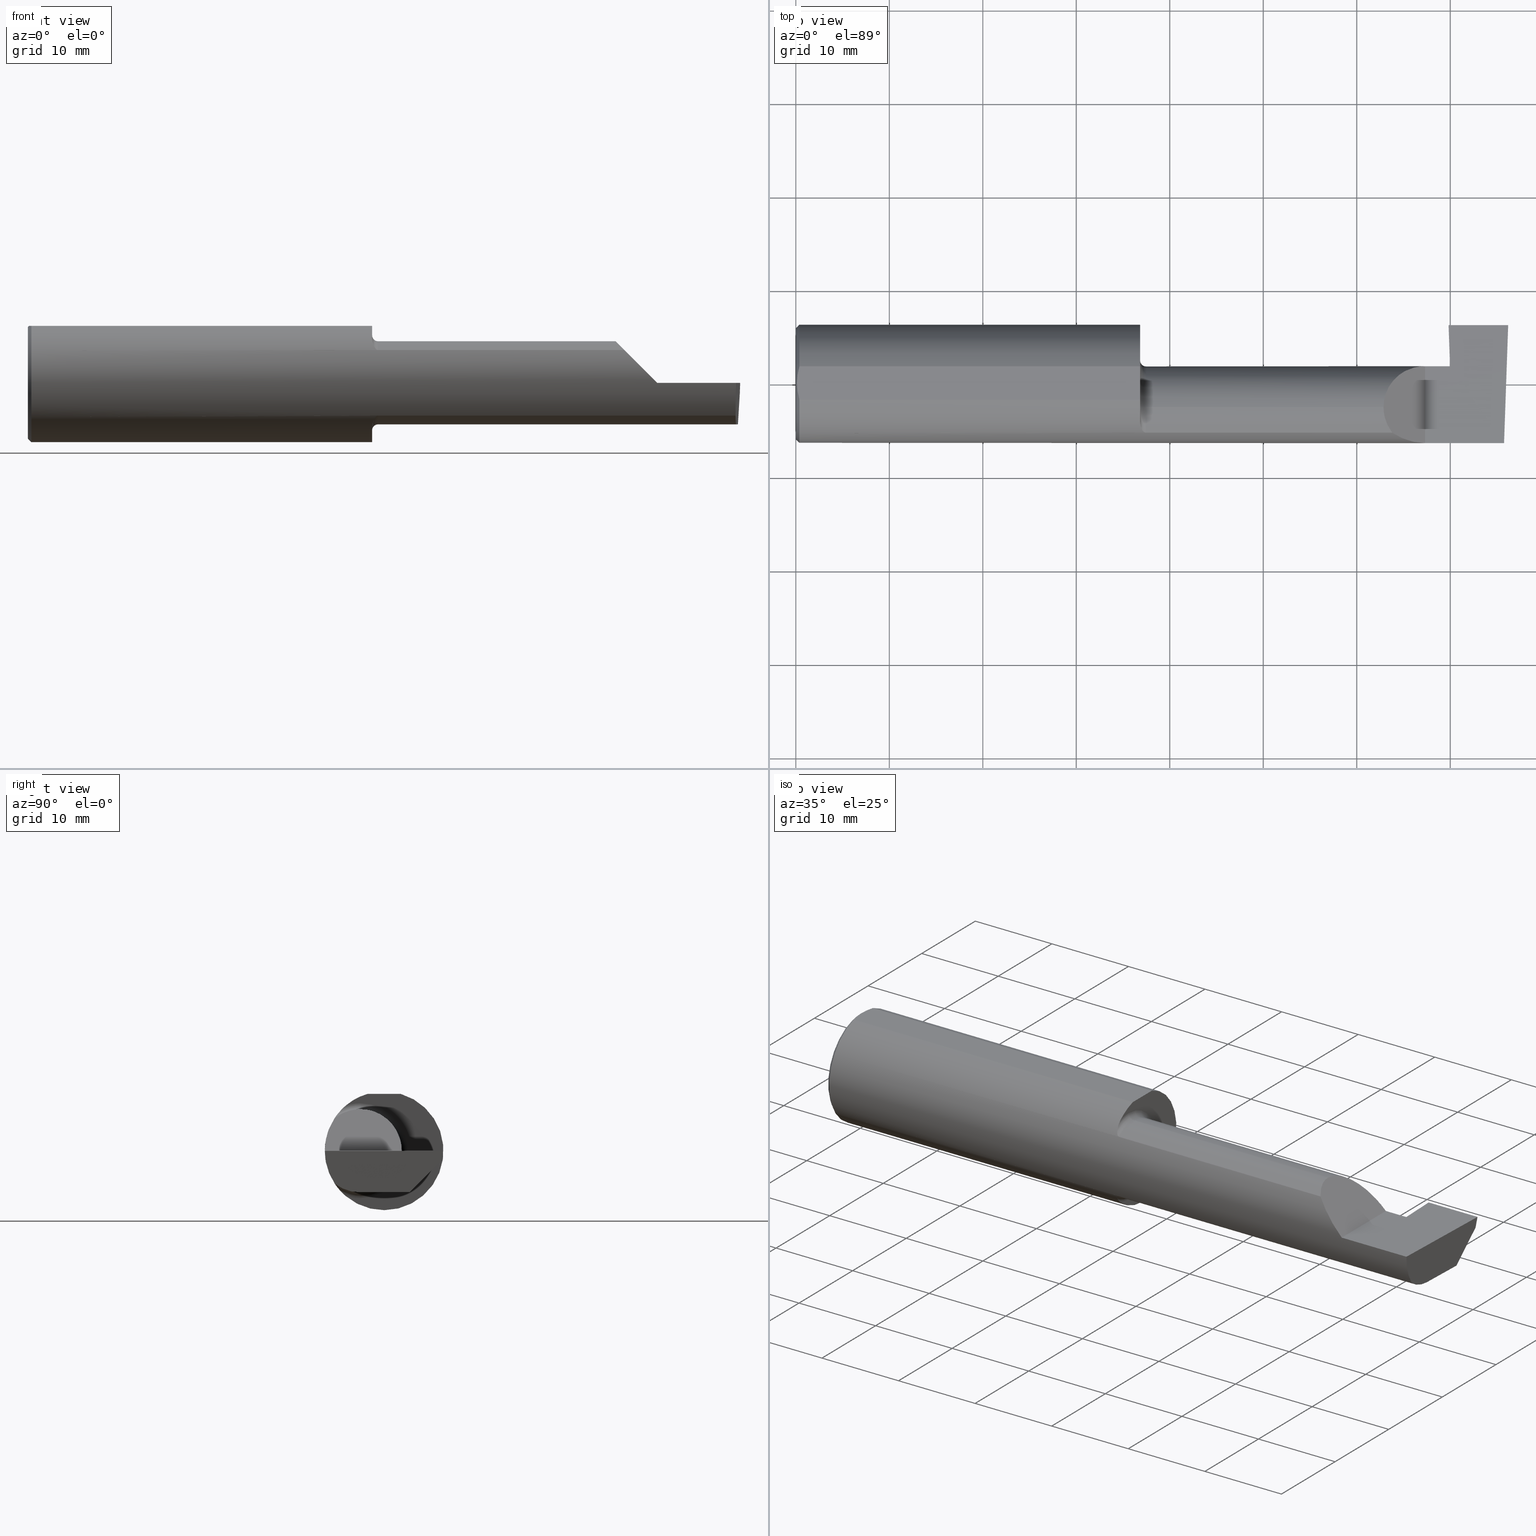
[diagram: canonical four-view strip — front | top / right | iso, engineering-drawing reading convention]
A machine part, canonical four-view strip (front | top / right | iso — engineering-drawing reading convention). The complete STEP part file that produces these views, byte-faithful:
ISO-10303-21;
HEADER;
FILE_DESCRIPTION (( 'STEP AP203' ),
    '1' );
FILE_NAME ('221592-GT250-24.STEP',
    '2024-07-23T16:26:14',
    ( '' ),
    ( '' ),
    'SwSTEP 2.0',
    'SolidWorks 2024',
    '' );
FILE_SCHEMA (( 'CONFIG_CONTROL_DESIGN' ));
ENDSEC;

DATA;
#1 = CARTESIAN_POINT ( 'NONE',  ( 2.650000000000000355, -0.2500000000000000555, 4.286263797015727350E-17 ) ) ;
#2 = CARTESIAN_POINT ( 'NONE',  ( 0.01499999999999998036, 0.06997856814768359246, 0.2398500000000000076 ) ) ;
#3 = VERTEX_POINT ( 'NONE', #588 ) ;
#4 = CC_DESIGN_APPROVAL ( #59, ( #764 ) ) ;
#5 = CARTESIAN_POINT ( 'NONE',  ( 2.760053226335258181, 0.1783460565688932409, -0.1750000000000000444 ) ) ;
#6 = CARTESIAN_POINT ( 'NONE',  ( 2.650000000000000355, 0.07414999999999997982, 4.286263797015727350E-17 ) ) ;
#7 = ORIENTED_EDGE ( 'NONE', *, *, #798, .T. ) ;
#8 = ORIENTED_EDGE ( 'NONE', *, *, #310, .F. ) ;
#9 = DIRECTION ( 'NONE',  ( -1.000000000000000000, -0.000000000000000000, -0.000000000000000000 ) ) ;
#10 = EDGE_CURVE ( 'NONE', #555, #766, #223, .T. ) ;
#11 = LINE ( 'NONE', #324, #345 ) ;
#12 = ADVANCED_FACE ( 'NONE', ( #655 ), #358, .F. ) ;
#13 = VERTEX_POINT ( 'NONE', #46 ) ;
#14 = CONICAL_SURFACE ( 'NONE', #713, 0.2498499999999999888, 0.7853981633974485010 ) ;
#15 = FACE_OUTER_BOUND ( 'NONE', #332, .T. ) ;
#16 = CARTESIAN_POINT ( 'NONE',  ( 2.999675955819515405, 0.2447082080031273699, -0.009112891793843752586 ) ) ;
#17 = ORIENTED_EDGE ( 'NONE', *, *, #485, .F. ) ;
#18 =( BOUNDED_CURVE ( )  B_SPLINE_CURVE ( 3, ( #418, #369, #535, #121 ),
 .UNSPECIFIED., .F., .T. ) 
 B_SPLINE_CURVE_WITH_KNOTS ( ( 4, 4 ),
 ( 5.623622464215678463, 6.283185307179586232 ),
 .UNSPECIFIED. ) 
 CURVE ( )  GEOMETRIC_REPRESENTATION_ITEM ( )  RATIONAL_B_SPLINE_CURVE ( ( 1.000000000000000000, 0.9640754331822828371, 0.9640754331822828371, 1.000000000000000000 ) ) 
 REPRESENTATION_ITEM ( '' )  );
#19 = APPLICATION_PROTOCOL_DEFINITION ( 'international standard', 'config_control_design', 1994, #433 ) ;
#20 = DIRECTION ( 'NONE',  ( -0.04274495231316484400, 0.2585824888546562894, 0.9650429863531866381 ) ) ;
#21 = ORIENTED_EDGE ( 'NONE', *, *, #312, .F. ) ;
#22 = CLOSED_SHELL ( 'NONE', ( #456, #174, #656, #513, #664, #176, #387, #442, #23, #690, #41, #598, #152, #675, #480, #643, #12, #586, #526, #186, #258, #51 ) ) ;
#23 = ADVANCED_FACE ( 'NONE', ( #594 ), #407, .F. ) ;
#24 = ORIENTED_EDGE ( 'NONE', *, *, #90, .T. ) ;
#25 = APPROVAL_STATUS ( 'not_yet_approved' ) ;
#26 = DIRECTION ( 'NONE',  ( 0.000000000000000000, 0.000000000000000000, 1.000000000000000000 ) ) ;
#27 = EDGE_CURVE ( 'NONE', #149, #157, #565, .T. ) ;
#28 = VERTEX_POINT ( 'NONE', #771 ) ;
#29 = EDGE_CURVE ( 'NONE', #142, #716, #241, .T. ) ;
#30 = ORIENTED_EDGE ( 'NONE', *, *, #677, .T. ) ;
#31 = PERSON_AND_ORGANIZATION_ROLE ( 'creator' ) ;
#32 = AXIS2_PLACEMENT_3D ( 'NONE', #346, #581, #283 ) ;
#33 = LINE ( 'NONE', #171, #789 ) ;
#34 = ORIENTED_EDGE ( 'NONE', *, *, #193, .T. ) ;
#35 = EDGE_LOOP ( 'NONE', ( #630, #674, #399, #400, #204, #279, #621, #473, #21, #704, #353, #234, #321, #349 ) ) ;
#36 = APPROVAL_STATUS ( 'not_yet_approved' ) ;
#37 = DIRECTION ( 'NONE',  ( 0.03489949670249940794, 0.9993908270190957621, -4.452728370532699971E-18 ) ) ;
#38 = DIRECTION ( 'NONE',  ( 0.000000000000000000, -0.9659258262890680902, 0.2588190451025216832 ) ) ;
#39 = ORIENTED_EDGE ( 'NONE', *, *, #760, .F. ) ;
#40 = CARTESIAN_POINT ( 'NONE',  ( 2.650000000000000355, -0.2498499999999999610, 4.286263797015727350E-17 ) ) ;
#41 = ADVANCED_FACE ( 'NONE', ( #342 ), #578, .F. ) ;
#42 = ORIENTED_EDGE ( 'NONE', *, *, #377, .T. ) ;
#43 = AXIS2_PLACEMENT_3D ( 'NONE', #765, #587, #357 ) ;
#44 = CALENDAR_DATE ( 2024, 23, 7 ) ;
#45 = CARTESIAN_POINT ( 'NONE',  ( 3.000000000000000444, 0.1058243371481678713, -0.1750000000000000167 ) ) ;
#46 = CARTESIAN_POINT ( 'NONE',  ( 1.474999999999999867, -0.2080850024789291375, -0.1382955322609665805 ) ) ;
#47 = SHAPE_DEFINITION_REPRESENTATION ( #445, #367 ) ;
#48 = PLANE ( 'NONE',  #484 ) ;
#49 = CC_DESIGN_SECURITY_CLASSIFICATION ( #318, ( #764 ) ) ;
#50 = CARTESIAN_POINT ( 'NONE',  ( 0.000000000000000000, 0.000000000000000000, -0.2348499999999999754 ) ) ;
#51 = ADVANCED_FACE ( 'NONE', ( #759 ), #217, .F. ) ;
#52 = LINE ( 'NONE', #729, #167 ) ;
#53 = FACE_OUTER_BOUND ( 'NONE', #35, .T. ) ;
#54 = DIRECTION ( 'NONE',  ( 0.000000000000000000, 0.000000000000000000, 1.000000000000000000 ) ) ;
#55 = VECTOR ( 'NONE', #322, 39.37007874015748854 ) ;
#56 = CARTESIAN_POINT ( 'NONE',  ( 1.458182335268384477, -0.1972192205116132246, 0.1535061413537207875 ) ) ;
#57 = AXIS2_PLACEMENT_3D ( 'NONE', #748, #553, #269 ) ;
#58 = CARTESIAN_POINT ( 'NONE',  ( 1.462579853086619641, -0.2024300470081738523, -0.1464774911482681630 ) ) ;
#59 = APPROVAL ( #36, 'UNSPECIFIED' ) ;
#60 = CARTESIAN_POINT ( 'NONE',  ( 1.467647060162628136, -0.2062109266231183791, 0.1410799729252287249 ) ) ;
#61 = DIRECTION ( 'NONE',  ( -1.000000000000000000, -0.000000000000000000, -0.000000000000000000 ) ) ;
#62 = AXIS2_PLACEMENT_3D ( 'NONE', #518, #38, #416 ) ;
#63 = FACE_OUTER_BOUND ( 'NONE', #580, .T. ) ;
#64 = B_SPLINE_CURVE_WITH_KNOTS ( 'NONE', 3,
 ( #602, #127, #360, #660, #297, #420, #58, #115, #306, #547, #478, #362 ),
 .UNSPECIFIED., .F., .F.,
 ( 4, 2, 2, 2, 2, 4 ),
 ( 1.964491429042083594E-07, 0.0001260981470478296940, 0.0002519998449527552082, 0.0005038032407626194097, 0.001007410032382347271, 0.002014623615621798872 ),
 .UNSPECIFIED. ) ;
#65 = CARTESIAN_POINT ( 'NONE',  ( 2.757811768722755019, 0.1698733669843043859, -0.1750000000000000444 ) ) ;
#66 = DIRECTION ( 'NONE',  ( 0.000000000000000000, 0.000000000000000000, 1.000000000000000000 ) ) ;
#67 = VERTEX_POINT ( 'NONE', #413 ) ;
#68 = ORIENTED_EDGE ( 'NONE', *, *, #295, .T. ) ;
#69 = LINE ( 'NONE', #140, #408 ) ;
#70 = CARTESIAN_POINT ( 'NONE',  ( 2.511704467739034552, -0.2080850024789292485, 0.1382955322609664139 ) ) ;
#71 = ORIENTED_EDGE ( 'NONE', *, *, #282, .F. ) ;
#72 = LOCAL_TIME ( 9, 26, 14.00000000000000000, #278 ) ;
#73 = EDGE_LOOP ( 'NONE', ( #589, #767, #650, #613 ) ) ;
#74 = CC_DESIGN_PERSON_AND_ORGANIZATION_ASSIGNMENT ( #396, #31, ( #364 ) ) ;
#75 = DIRECTION ( 'NONE',  ( -1.000000000000000000, -0.000000000000000000, -0.000000000000000000 ) ) ;
#76 = DIRECTION ( 'NONE',  ( 0.000000000000000000, 0.000000000000000000, 1.000000000000000000 ) ) ;
#77 = AXIS2_PLACEMENT_3D ( 'NONE', #412, #652, #26 ) ;
#78 = EDGE_LOOP ( 'NONE', ( #436, #191, #510, #34, #722 ) ) ;
#79 = CARTESIAN_POINT ( 'NONE',  ( 1.449999999999999512, -0.1616050818046604332, 0.1905487340154980169 ) ) ;
#80 = CIRCLE ( 'NONE', #326, 0.1999999999999999833 ) ;
#81 = CARTESIAN_POINT ( 'NONE',  ( 1.450000000000000178, -0.2498499999999999888, 0.2398500000000000076 ) ) ;
#82 = ORIENTED_EDGE ( 'NONE', *, *, #534, .T. ) ;
#83 = APPROVAL_DATE_TIME ( #89, #59 ) ;
#84 = AXIS2_PLACEMENT_3D ( 'NONE', #255, #495, #419 ) ;
#85 = PRODUCT_RELATED_PRODUCT_CATEGORY ( 'detail', '', ( #196 ) ) ;
#86 = FACE_OUTER_BOUND ( 'NONE', #567, .T. ) ;
#87 = ORIENTED_EDGE ( 'NONE', *, *, #486, .F. ) ;
#88 = ORIENTED_EDGE ( 'NONE', *, *, #295, .F. ) ;
#89 = DATE_AND_TIME ( #468, #728 ) ;
#90 = EDGE_CURVE ( 'NONE', #467, #13, #274, .T. ) ;
#91 = EDGE_CURVE ( 'NONE', #716, #455, #334, .T. ) ;
#92 = DIRECTION ( 'NONE',  ( -0.03489949670249939406, -0.9993908270190957621, 2.445004146800611436E-16 ) ) ;
#93 = CARTESIAN_POINT ( 'NONE',  ( 0.01180609504125290990, -0.05857511741890331081, 0.2398500000000000354 ) ) ;
#94 = AXIS2_PLACEMENT_3D ( 'NONE', #284, #470, #347 ) ;
#95 = VERTEX_POINT ( 'NONE', #797 ) ;
#96 = PERSON_AND_ORGANIZATION ( #698, #461 ) ;
#97 = FACE_OUTER_BOUND ( 'NONE', #633, .T. ) ;
#98 = VECTOR ( 'NONE', #20, 39.37007874015748143 ) ;
#99 = EDGE_LOOP ( 'NONE', ( #100, #515, #563, #386, #753, #8, #638 ) ) ;
#100 = ORIENTED_EDGE ( 'NONE', *, *, #486, .T. ) ;
#101 = AXIS2_PLACEMENT_3D ( 'NONE', #263, #676, #682 ) ;
#102 = DATE_TIME_ROLE ( 'classification_date' ) ;
#103 = TOROIDAL_SURFACE ( 'NONE', #139, 0.1999999999999999833, 0.02500000000000007425 ) ;
#104 = CARTESIAN_POINT ( 'NONE',  ( 3.000000000000000444, -0.2500000000000000555, 0.000000000000000000 ) ) ;
#105 = CARTESIAN_POINT ( 'NONE',  ( 0.005880636388018714231, -0.02358947477502552903, 0.2398500000000000354 ) ) ;
#106 = VERTEX_POINT ( 'NONE', #128 ) ;
#107 = EDGE_CURVE ( 'NONE', #3, #262, #511, .T. ) ;
#108 = PLANE ( 'NONE',  #43 ) ;
#109 = EDGE_LOOP ( 'NONE', ( #146, #574, #689, #741 ) ) ;
#110 = DIRECTION ( 'NONE',  ( 0.000000000000000000, 0.000000000000000000, 1.000000000000000000 ) ) ;
#111 = VERTEX_POINT ( 'NONE', #307 ) ;
#112 = FACE_OUTER_BOUND ( 'NONE', #680, .T. ) ;
#113 = CARTESIAN_POINT ( 'NONE',  ( 1.451849548162864600, -0.1805300287242675439, 0.1728462070311779508 ) ) ;
#114 = AXIS2_PLACEMENT_3D ( 'NONE', #726, #182, #424 ) ;
#115 = CARTESIAN_POINT ( 'NONE',  ( 1.458176740666625282, -0.1972027065478075825, -0.1535263573771911139 ) ) ;
#116 = EDGE_CURVE ( 'NONE', #156, #571, #370, .T. ) ;
#117 = APPROVAL_PERSON_ORGANIZATION ( #530, #59, #336 ) ;
#118 = EDGE_CURVE ( 'NONE', #163, #507, #791, .T. ) ;
#119 = CARTESIAN_POINT ( 'NONE',  ( 1.450000000000000178, -0.1008499999999999674, 0.000000000000000000 ) ) ;
#120 = APPROVAL_STATUS ( 'not_yet_approved' ) ;
#121 = CARTESIAN_POINT ( 'NONE',  ( 2.475000000000001421, -0.1008499999999999674, 0.1749999999999999889 ) ) ;
#122 = CARTESIAN_POINT ( 'NONE',  ( 2.749000000000000110, 0.2471500000000000086, -3.306546357697639493E-19 ) ) ;
#123 = CC_DESIGN_DATE_AND_TIME_ASSIGNMENT ( #645, #102, ( #318 ) ) ;
#124 = CARTESIAN_POINT ( 'NONE',  ( 2.725000000000000089, 0.2348243371481683328, -0.04599999999999999922 ) ) ;
#125 = LINE ( 'NONE', #309, #576 ) ;
#126 = AXIS2_PLACEMENT_3D ( 'NONE', #782, #243, #483 ) ;
#127 = CARTESIAN_POINT ( 'NONE',  ( 1.473318040126429640, -0.2080850024789293040, -0.1382955322609664139 ) ) ;
#128 = CARTESIAN_POINT ( 'NONE',  ( 1.474999999999999867, -0.1008499999999999674, 0.1749999999999999889 ) ) ;
#129 = CARTESIAN_POINT ( 'NONE',  ( 1.450000000000000178, 0.06997856814768360634, 0.2398500000000000076 ) ) ;
#130 = VECTOR ( 'NONE', #426, 39.37007874015748854 ) ;
#131 = CARTESIAN_POINT ( 'NONE',  ( 2.756564601548836535, 0.04629714416892562884, -0.1252712066320194051 ) ) ;
#132 =( BOUNDED_CURVE ( )  B_SPLINE_CURVE ( 3, ( #380, #319, #145, #628 ),
 .UNSPECIFIED., .F., .T. ) 
 B_SPLINE_CURVE_WITH_KNOTS ( ( 4, 4 ),
 ( 4.443983221546778495, 4.709965478757016655 ),
 .UNSPECIFIED. ) 
 CURVE ( )  GEOMETRIC_REPRESENTATION_ITEM ( )  RATIONAL_B_SPLINE_CURVE ( ( 1.000000000000000000, 0.9941131374841131185, 0.9941131374841131185, 1.000000000000000000 ) ) 
 REPRESENTATION_ITEM ( '' )  );
#133 = EDGE_LOOP ( 'NONE', ( #502, #519, #757, #457 ) ) ;
#134 = CIRCLE ( 'NONE', #579, 0.2498499999999999888 ) ;
#135 = LINE ( 'NONE', #449, #787 ) ;
#136 = CARTESIAN_POINT ( 'NONE',  ( 0.000000000000000000, 0.000000000000000000, 0.000000000000000000 ) ) ;
#137 = ORIENTED_EDGE ( 'NONE', *, *, #549, .T. ) ;
#138 = EDGE_CURVE ( 'NONE', #766, #95, #188, .T. ) ;
#139 = AXIS2_PLACEMENT_3D ( 'NONE', #596, #425, #54 ) ;
#140 = CARTESIAN_POINT ( 'NONE',  ( 2.766634504791320115, -0.2581443322840843435, 2.857903067387466250E-17 ) ) ;
#141 = CARTESIAN_POINT ( 'NONE',  ( 1.449999999999999512, -0.1616050818046604332, -0.1905487340154980169 ) ) ;
#142 = VERTEX_POINT ( 'NONE', #429 ) ;
#143 = ORIENTED_EDGE ( 'NONE', *, *, #282, .T. ) ;
#144 = DIRECTION ( 'NONE',  ( 1.000000000000000000, 0.000000000000000000, 0.000000000000000000 ) ) ;
#145 = CARTESIAN_POINT ( 'NONE',  ( 2.749689495973013820, 0.07413112468343002748, -0.01577237022675150729 ) ) ;
#146 = ORIENTED_EDGE ( 'NONE', *, *, #164, .F. ) ;
#147 = CARTESIAN_POINT ( 'NONE',  ( 0.01499999999999999944, 0.000000000000000000, 0.000000000000000000 ) ) ;
#148 = CARTESIAN_POINT ( 'NONE',  ( 0.01181966702888963446, 0.05862357455657472849, 0.2398500000000000631 ) ) ;
#149 = VERTEX_POINT ( 'NONE', #372 ) ;
#150 = EDGE_CURVE ( 'NONE', #694, #625, #125, .T. ) ;
#151 = ORIENTED_EDGE ( 'NONE', *, *, #222, .T. ) ;
#152 = ADVANCED_FACE ( 'NONE', ( #63 ), #536, .T. ) ;
#153 = DATE_AND_TIME ( #695, #72 ) ;
#154 = CIRCLE ( 'NONE', #126, 0.02500000000000007425 ) ;
#155 = LINE ( 'NONE', #591, #772 ) ;
#156 = VERTEX_POINT ( 'NONE', #659 ) ;
#157 = VERTEX_POINT ( 'NONE', #361 ) ;
#158 = CARTESIAN_POINT ( 'NONE',  ( 2.982660284539054629, -0.2493944837933358694, 2.123502703737254632E-18 ) ) ;
#159 = CARTESIAN_POINT ( 'NONE',  ( 2.994767799596354418, 0.2473327124642303587, -0.1999314649951115241 ) ) ;
#160 = VERTEX_POINT ( 'NONE', #122 ) ;
#161 = CALENDAR_DATE ( 2024, 23, 7 ) ;
#162 = DIRECTION ( 'NONE',  ( 0.000000000000000000, 0.000000000000000000, 1.000000000000000000 ) ) ;
#163 = VERTEX_POINT ( 'NONE', #50 ) ;
#164 = EDGE_CURVE ( 'NONE', #572, #106, #154, .T. ) ;
#165 = ORIENTED_EDGE ( 'NONE', *, *, #786, .T. ) ;
#166 = LENGTH_MEASURE_WITH_UNIT ( LENGTH_MEASURE( 0.02539999999999999897 ), #774 );
#167 = VECTOR ( 'NONE', #294, 39.37007874015748143 ) ;
#168 = DIRECTION ( 'NONE',  ( -1.224646799147351482E-16, 0.000000000000000000, -1.000000000000000000 ) ) ;
#169 = DIRECTION ( 'NONE',  ( 0.000000000000000000, 0.000000000000000000, -1.000000000000000000 ) ) ;
#170 = EDGE_LOOP ( 'NONE', ( #137, #68, #528, #705 ) ) ;
#171 = CARTESIAN_POINT ( 'NONE',  ( 2.725000000000000089, 0.2471500000000000086, -3.306546357697639493E-19 ) ) ;
#172 = CARTESIAN_POINT ( 'NONE',  ( 2.725000000000000089, 0.2348243371481683328, -0.04599999999999999922 ) ) ;
#173 = VECTOR ( 'NONE', #175, 39.37007874015748854 ) ;
#174 = ADVANCED_FACE ( 'NONE', ( #421 ), #661, .T. ) ;
#175 = DIRECTION ( 'NONE',  ( 0.04426438787458265856, 0.001217521851804792121, -0.9990191097304539358 ) ) ;
#176 = ADVANCED_FACE ( 'NONE', ( #53 ), #300, .T. ) ;
#177 = EDGE_CURVE ( 'NONE', #625, #156, #595, .T. ) ;
#178 = DESIGN_CONTEXT ( 'detailed design', #556, 'design' ) ;
#179 = CARTESIAN_POINT ( 'NONE',  ( 2.751037492458068279, 0.07420629955631043162, -0.04619574797784884584 ) ) ;
#180 = DIRECTION ( 'NONE',  ( -1.000000000000000000, -0.000000000000000000, -0.000000000000000000 ) ) ;
#181 = DIRECTION ( 'NONE',  ( 1.000000000000000000, 0.000000000000000000, 0.000000000000000000 ) ) ;
#182 = DIRECTION ( 'NONE',  ( -1.000000000000000000, -0.000000000000000000, -0.000000000000000000 ) ) ;
#183 = PLANE ( 'NONE',  #747 ) ;
#184 = DIRECTION ( 'NONE',  ( 0.7071067811865473507, 0.000000000000000000, -0.7071067811865476838 ) ) ;
#185 = VECTOR ( 'NONE', #92, 39.37007874015748854 ) ;
#186 = ADVANCED_FACE ( 'NONE', ( #366 ), #663, .F. ) ;
#187 = FACE_OUTER_BOUND ( 'NONE', #316, .T. ) ;
#188 = LINE ( 'NONE', #730, #130 ) ;
#189 = DIRECTION ( 'NONE',  ( -1.000000000000000000, -0.000000000000000000, -0.000000000000000000 ) ) ;
#190 = LINE ( 'NONE', #672, #333 ) ;
#191 = ORIENTED_EDGE ( 'NONE', *, *, #240, .F. ) ;
#192 = CARTESIAN_POINT ( 'NONE',  ( 1.449999999999999734, -0.1008499999999999674, 0.000000000000000000 ) ) ;
#193 = EDGE_CURVE ( 'NONE', #507, #157, #394, .T. ) ;
#194 = CARTESIAN_POINT ( 'NONE',  ( 2.475000000000001421, -0.1008499999999999674, 0.1749999999999999889 ) ) ;
#195 = ORIENTED_EDGE ( 'NONE', *, *, #314, .F. ) ;
#196 = PRODUCT ( '221592-GT250-24', '221592-GT250-24', '', ( #405 ) ) ;
#197 = ORIENTED_EDGE ( 'NONE', *, *, #238, .T. ) ;
#198 = VECTOR ( 'NONE', #450, 39.37007874015748143 ) ;
#199 = LINE ( 'NONE', #65, #667 ) ;
#200 = DIRECTION ( 'NONE',  ( 0.04426435506670334946, 0.000000000000000000, -0.9990198530912830499 ) ) ;
#201 = VECTOR ( 'NONE', #9, 39.37007874015748143 ) ;
#202 = EDGE_LOOP ( 'NONE', ( #476, #197, #532, #88, #143, #212, #750, #444 ) ) ;
#203 = AXIS2_PLACEMENT_3D ( 'NONE', #216, #288, #110 ) ;
#204 = ORIENTED_EDGE ( 'NONE', *, *, #91, .F. ) ;
#205 = LINE ( 'NONE', #739, #201 ) ;
#206 = LINE ( 'NONE', #570, #98 ) ;
#207 = ORIENTED_EDGE ( 'NONE', *, *, #537, .T. ) ;
#208 = CC_DESIGN_DATE_AND_TIME_ASSIGNMENT ( #590, #226, ( #364 ) ) ;
#209 = CARTESIAN_POINT ( 'NONE',  ( 1.450000000000000178, -0.1008499999999999674, 0.000000000000000000 ) ) ;
#210 = AXIS2_PLACEMENT_3D ( 'NONE', #363, #298, #492 ) ;
#211 = DIRECTION ( 'NONE',  ( 0.02616100201822768243, -0.0009135623211515302069, 0.9996573249755575929 ) ) ;
#212 = ORIENTED_EDGE ( 'NONE', *, *, #751, .T. ) ;
#213 = CARTESIAN_POINT ( 'NONE',  ( 2.980479240051444378, -0.2080850024789291652, -0.1382955322609665250 ) ) ;
#214 = ORIENTED_EDGE ( 'NONE', *, *, #329, .F. ) ;
#215 = ORIENTED_EDGE ( 'NONE', *, *, #751, .F. ) ;
#216 = CARTESIAN_POINT ( 'NONE',  ( 0.000000000000000000, 0.000000000000000000, 0.000000000000000000 ) ) ;
#217 = PLANE ( 'NONE',  #373 ) ;
#218 = CC_DESIGN_APPROVAL ( #545, ( #318 ) ) ;
#219 = ORIENTED_EDGE ( 'NONE', *, *, #657, .F. ) ;
#220 = PERSON_AND_ORGANIZATION_ROLE ( 'classification_officer' ) ;
#221 = DIRECTION ( 'NONE',  ( 1.000000000000000000, -0.000000000000000000, -0.000000000000000000 ) ) ;
#222 = EDGE_CURVE ( 'NONE', #395, #149, #794, .T. ) ;
#223 = LINE ( 'NONE', #172, #611 ) ;
#224 = CC_DESIGN_PERSON_AND_ORGANIZATION_ASSIGNMENT ( #585, #459, ( #196 ) ) ;
#225 = VERTEX_POINT ( 'NONE', #70 ) ;
#226 = DATE_TIME_ROLE ( 'creation_date' ) ;
#227 = LINE ( 'NONE', #406, #539 ) ;
#228 = ORIENTED_EDGE ( 'NONE', *, *, #118, .F. ) ;
#229 = ORIENTED_EDGE ( 'NONE', *, *, #240, .T. ) ;
#230 = VECTOR ( 'NONE', #61, 39.37007874015748143 ) ;
#231 = DIRECTION ( 'NONE',  ( 1.000000000000000000, 0.000000000000000000, 0.000000000000000000 ) ) ;
#232 = AXIS2_PLACEMENT_3D ( 'NONE', #541, #788, #488 ) ;
#233 = LINE ( 'NONE', #158, #783 ) ;
#234 = ORIENTED_EDGE ( 'NONE', *, *, #537, .F. ) ;
#235 = APPROVAL_DATE_TIME ( #477, #545 ) ;
#236 = CARTESIAN_POINT ( 'NONE',  ( 2.751037492458068279, 0.2348243371481683328, -0.04599999999999999922 ) ) ;
#237 = CARTESIAN_POINT ( 'NONE',  ( 0.004999999999999471013, 5.665694022114171174E-17, 0.2398500000000000076 ) ) ;
#238 = EDGE_CURVE ( 'NONE', #67, #467, #190, .T. ) ;
#239 = DIMENSIONAL_EXPONENTS ( 1.000000000000000000, 0.000000000000000000, 0.000000000000000000, 0.000000000000000000, 0.000000000000000000, 0.000000000000000000, 0.000000000000000000 ) ;
#240 = EDGE_CURVE ( 'NONE', #163, #111, #359, .T. ) ;
#241 = CIRCLE ( 'NONE', #94, 0.2498499999999999888 ) ;
#242 = CARTESIAN_POINT ( 'NONE',  ( 2.112000000000000099, -0.2080850024789291652, 0.1382955322609665250 ) ) ;
#243 = DIRECTION ( 'NONE',  ( 0.000000000000000000, -1.000000000000000000, 0.000000000000000000 ) ) ;
#244 = COORDINATED_UNIVERSAL_TIME_OFFSET ( 8, 0, .BEHIND. ) ;
#245 = AXIS2_PLACEMENT_3D ( 'NONE', #708, #654, #162 ) ;
#246 = CARTESIAN_POINT ( 'NONE',  ( 2.980602402804240381, -0.2354324170447371078, -0.09714751587400052846 ) ) ;
#247 = DIRECTION ( 'NONE',  ( -1.000000000000000000, -0.000000000000000000, -0.000000000000000000 ) ) ;
#248 =( BOUNDED_CURVE ( )  B_SPLINE_CURVE ( 3, ( #688, #509, #131, #497 ),
 .UNSPECIFIED., .F., .T. ) 
 B_SPLINE_CURVE_WITH_KNOTS ( ( 4, 4 ),
 ( 3.140373936913444908, 4.443983221546777607 ),
 .UNSPECIFIED. ) 
 CURVE ( )  GEOMETRIC_REPRESENTATION_ITEM ( )  RATIONAL_B_SPLINE_CURVE ( ( 1.000000000000000000, 0.8633269052189371795, 0.8633269052189371795, 1.000000000000000000 ) ) 
 REPRESENTATION_ITEM ( '' )  );
#249 = FACE_OUTER_BOUND ( 'NONE', #277, .T. ) ;
#250 = CARTESIAN_POINT ( 'NONE',  ( 1.449999999999999512, -0.1616050818046604332, 0.1905487340154980169 ) ) ;
#251 = EDGE_CURVE ( 'NONE', #67, #584, #248, .T. ) ;
#252 = CARTESIAN_POINT ( 'NONE',  ( 2.755975647374413473, 0.2473935949740175555, -0.1998781654038191691 ) ) ;
#253 = CARTESIAN_POINT ( 'NONE',  ( 2.751037492458068279, 0.07420629955631043162, -0.04619574797784884584 ) ) ;
#254 = CARTESIAN_POINT ( 'NONE',  ( 2.511704467739034552, -0.2080850024789292485, 0.1382955322609664139 ) ) ;
#255 = CARTESIAN_POINT ( 'NONE',  ( 1.450000000000000178, 0.2741499999999998938, 0.000000000000000000 ) ) ;
#256 = DIRECTION ( 'NONE',  ( 0.000000000000000000, 0.000000000000000000, -1.000000000000000000 ) ) ;
#257 = ORIENTED_EDGE ( 'NONE', *, *, #312, .T. ) ;
#258 = ADVANCED_FACE ( 'NONE', ( #86 ), #744, .F. ) ;
#259 = EDGE_CURVE ( 'NONE', #584, #156, #132, .T. ) ;
#260 = CARTESIAN_POINT ( 'NONE',  ( 1.474999999999999867, -0.1008499999999999536, -0.1999999999999999833 ) ) ;
#261 = CARTESIAN_POINT ( 'NONE',  ( 1.450000000000000178, -0.1008499999999999674, 0.1749999999999999889 ) ) ;
#262 = VERTEX_POINT ( 'NONE', #141 ) ;
#263 = CARTESIAN_POINT ( 'NONE',  ( 1.474999999999999867, -0.1008499999999999674, 0.000000000000000000 ) ) ;
#264 = DIRECTION ( 'NONE',  ( 0.06975643500179386225, 0.001215747646128943413, -0.9975633121428941763 ) ) ;
#265 = CIRCLE ( 'NONE', #646, 0.02500000000000007425 ) ;
#266 = EDGE_LOOP ( 'NONE', ( #432, #39, #562, #71 ) ) ;
#267 = VECTOR ( 'NONE', #181, 39.37007874015748143 ) ;
#268 = ORIENTED_EDGE ( 'NONE', *, *, #414, .F. ) ;
#269 = DIRECTION ( 'NONE',  ( 0.000000000000000000, 0.000000000000000000, 1.000000000000000000 ) ) ;
#270 = CARTESIAN_POINT ( 'NONE',  ( 2.760047045968828883, 0.1058243371481679407, -0.1749999999999999889 ) ) ;
#271 = ORIENTED_EDGE ( 'NONE', *, *, #703, .F. ) ;
#272 = EDGE_CURVE ( 'NONE', #338, #766, #506, .T. ) ;
#273 = EDGE_LOOP ( 'NONE', ( #381, #709, #24, #207 ) ) ;
#274 = CIRCLE ( 'NONE', #639, 0.1749999999999999889 ) ;
#275 = CARTESIAN_POINT ( 'NONE',  ( 2.999999999999999556, 0.2471499999999999531, -6.157329266969842815E-16 ) ) ;
#276 = VERTEX_POINT ( 'NONE', #447 ) ;
#277 = EDGE_LOOP ( 'NONE', ( #441, #385, #268, #335 ) ) ;
#278 = COORDINATED_UNIVERSAL_TIME_OFFSET ( 8, 0, .BEHIND. ) ;
#279 = ORIENTED_EDGE ( 'NONE', *, *, #29, .F. ) ;
#280 = VERTEX_POINT ( 'NONE', #270 ) ;
#281 = PERSON_AND_ORGANIZATION ( #698, #461 ) ;
#282 = EDGE_CURVE ( 'NONE', #28, #325, #706, .T. ) ;
#283 = DIRECTION ( 'NONE',  ( 0.000000000000000000, 0.000000000000000000, 1.000000000000000000 ) ) ;
#284 = CARTESIAN_POINT ( 'NONE',  ( 1.450000000000000178, 0.000000000000000000, 0.000000000000000000 ) ) ;
#285 = LOCAL_TIME ( 9, 26, 14.00000000000000000, #516 ) ;
#286 = ORIENTED_EDGE ( 'NONE', *, *, #458, .T. ) ;
#287 = PERSON_AND_ORGANIZATION_ROLE ( 'design_supplier' ) ;
#288 = DIRECTION ( 'NONE',  ( -1.000000000000000000, -0.000000000000000000, -0.000000000000000000 ) ) ;
#289 = EDGE_LOOP ( 'NONE', ( #271, #710, #17, #165, #498, #215, #219 ) ) ;
#290 = ORIENTED_EDGE ( 'NONE', *, *, #302, .T. ) ;
#291 = CARTESIAN_POINT ( 'NONE',  ( 0.000000000000000000, 0.000000000000000000, 0.000000000000000000 ) ) ;
#292 = CARTESIAN_POINT ( 'NONE',  ( 1.474999999999999867, -0.2080850024789292485, 0.1382955322609664972 ) ) ;
#293 = ORIENTED_EDGE ( 'NONE', *, *, #677, .F. ) ;
#294 = DIRECTION ( 'NONE',  ( -1.000000000000000000, -0.000000000000000000, -0.000000000000000000 ) ) ;
#295 = EDGE_CURVE ( 'NONE', #28, #106, #566, .T. ) ;
#296 = ORIENTED_EDGE ( 'NONE', *, *, #796, .F. ) ;
#297 = CARTESIAN_POINT ( 'NONE',  ( 1.467611663768900065, -0.2061921161193832619, -0.1411075319999373079 ) ) ;
#298 = DIRECTION ( 'NONE',  ( -1.000000000000000000, -0.000000000000000000, -0.000000000000000000 ) ) ;
#299 = LINE ( 'NONE', #544, #648 ) ;
#300 = CYLINDRICAL_SURFACE ( 'NONE', #232, 0.2498499999999999888 ) ;
#301 = CIRCLE ( 'NONE', #711, 0.1999999999999999833 ) ;
#302 = EDGE_CURVE ( 'NONE', #142, #686, #501, .T. ) ;
#303 = CIRCLE ( 'NONE', #32, 0.1749999999999999889 ) ;
#304 = CARTESIAN_POINT ( 'NONE',  ( 2.982644377562602589, -0.2498499999999999610, 1.813681607540488003E-17 ) ) ;
#305 = CARTESIAN_POINT ( 'NONE',  ( 1.452968662030528657, -0.1849684355203378705, 0.1680843977756266150 ) ) ;
#306 = CARTESIAN_POINT ( 'NONE',  ( 1.456147634408387903, -0.1932733126899463250, -0.1584637047788194641 ) ) ;
#307 = CARTESIAN_POINT ( 'NONE',  ( 0.000000000000000000, 2.967931517733610643E-17, 0.2348499999999999754 ) ) ;
#308 = DIRECTION ( 'NONE',  ( 1.000000000000000000, 0.000000000000000000, 0.000000000000000000 ) ) ;
#309 = CARTESIAN_POINT ( 'NONE',  ( 3.000000000000000444, 0.07414999999999997982, 7.390063769656993092E-33 ) ) ;
#310 = EDGE_CURVE ( 'NONE', #276, #637, #683, .T. ) ;
#311 = CARTESIAN_POINT ( 'NONE',  ( 2.761145020370094016, 0.07436327552395197160, -0.1750000000000000167 ) ) ;
#312 = EDGE_CURVE ( 'NONE', #395, #507, #134, .T. ) ;
#313 = DIRECTION ( 'NONE',  ( -1.000000000000000000, -0.000000000000000000, -0.000000000000000000 ) ) ;
#314 = EDGE_CURVE ( 'NONE', #571, #773, #11, .T. ) ;
#315 = ORIENTED_EDGE ( 'NONE', *, *, #222, .F. ) ;
#316 = EDGE_LOOP ( 'NONE', ( #214, #390, #462, #339, #779 ) ) ;
#317 = CARTESIAN_POINT ( 'NONE',  ( 2.650000000000000355, -0.2498499999999999610, 4.286263797015727350E-17 ) ) ;
#318 = SECURITY_CLASSIFICATION ( '', '', #344 ) ;
#319 = CARTESIAN_POINT ( 'NONE',  ( 2.750372681961405164, 0.07204909126152565790, -0.03119400421533637113 ) ) ;
#320 = ORIENTED_EDGE ( 'NONE', *, *, #738, .T. ) ;
#321 = ORIENTED_EDGE ( 'NONE', *, *, #534, .F. ) ;
#322 = DIRECTION ( 'NONE',  ( 8.522090287129319196E-05, 0.9999999963686987403, -2.446351747218455724E-16 ) ) ;
#323 =( BOUNDED_CURVE ( )  B_SPLINE_CURVE ( 3, ( #702, #641, #758, #415 ),
 .UNSPECIFIED., .F., .T. ) 
 B_SPLINE_CURVE_WITH_KNOTS ( ( 4, 4 ),
 ( 0.2675252011803428975, 0.9270880441442503894 ),
 .UNSPECIFIED. ) 
 CURVE ( )  GEOMETRIC_REPRESENTATION_ITEM ( )  RATIONAL_B_SPLINE_CURVE ( ( 1.000000000000000000, 0.9640754331822828371, 0.9640754331822828371, 1.000000000000000000 ) ) 
 REPRESENTATION_ITEM ( '' )  );
#324 = CARTESIAN_POINT ( 'NONE',  ( 2.760047045968828883, 0.07436332225211045310, -0.1750383420824915270 ) ) ;
#325 = VERTEX_POINT ( 'NONE', #749 ) ;
#326 = AXIS2_PLACEMENT_3D ( 'NONE', #355, #454, #718 ) ;
#327 = ORIENTED_EDGE ( 'NONE', *, *, #784, .T. ) ;
#328 = CARTESIAN_POINT ( 'NONE',  ( 0.01499999999999999944, 0.000000000000000000, 0.000000000000000000 ) ) ;
#329 = EDGE_CURVE ( 'NONE', #555, #160, #206, .T. ) ;
#330 = DIRECTION ( 'NONE',  ( -1.000000000000000000, -0.000000000000000000, -0.000000000000000000 ) ) ;
#331 = AXIS2_PLACEMENT_3D ( 'NONE', #291, #769, #231 ) ;
#332 = EDGE_LOOP ( 'NONE', ( #575, #42, #315, #257, #228 ) ) ;
#333 = VECTOR ( 'NONE', #330, 39.37007874015748143 ) ;
#334 = B_SPLINE_CURVE_WITH_KNOTS ( 'NONE', 3,
 ( #250, #548, #490, #113, #305, #608, #56, #732, #551, #60, #666, #670, #793, #599 ),
 .UNSPECIFIED., .F., .F.,
 ( 4, 2, 2, 2, 2, 2, 4 ),
 ( 0.0003834465838148173595, 0.0008781406165086639085, 0.001372834649202510403, 0.001867528681896358633, 0.002114875698243288710, 0.002238549206416759821, 0.002362222714590230931 ),
 .UNSPECIFIED. ) ;
#335 = ORIENTED_EDGE ( 'NONE', *, *, #401, .T. ) ;
#336 = APPROVAL_ROLE ( '' ) ;
#337 = CARTESIAN_POINT ( 'NONE',  ( 2.977412177158956563, -0.2496672875357696664, -0.1999314649951114686 ) ) ;
#338 = VERTEX_POINT ( 'NONE', #275 ) ;
#339 = ORIENTED_EDGE ( 'NONE', *, *, #614, .T. ) ;
#340 = PERSON_AND_ORGANIZATION ( #698, #461 ) ;
#341 = PLANE ( 'NONE',  #629 ) ;
#342 = FACE_OUTER_BOUND ( 'NONE', #452, .T. ) ;
#343 = ORIENTED_EDGE ( 'NONE', *, *, #414, .T. ) ;
#344 = SECURITY_CLASSIFICATION_LEVEL ( 'unclassified' ) ;
#345 = VECTOR ( 'NONE', #264, 39.37007874015748854 ) ;
#346 = CARTESIAN_POINT ( 'NONE',  ( 1.474999999999999867, -0.1008499999999999674, 0.000000000000000000 ) ) ;
#347 = DIRECTION ( 'NONE',  ( 0.000000000000000000, 0.000000000000000000, -1.000000000000000000 ) ) ;
#348 = TOROIDAL_SURFACE ( 'NONE', #57, 0.1999999999999999833, 0.02500000000000007425 ) ;
#349 = ORIENTED_EDGE ( 'NONE', *, *, #619, .T. ) ;
#350 = CARTESIAN_POINT ( 'NONE',  ( 1.450000000000000178, 0.000000000000000000, 0.000000000000000000 ) ) ;
#351 = DIRECTION ( 'NONE',  ( -1.000000000000000000, 0.000000000000000000, 1.224646799147351482E-16 ) ) ;
#352 = CARTESIAN_POINT ( 'NONE',  ( 0.009274236576542580976, -0.04692405468904852633, 0.2398500000000000076 ) ) ;
#353 = ORIENTED_EDGE ( 'NONE', *, *, #798, .F. ) ;
#354 = PERSON_AND_ORGANIZATION ( #698, #461 ) ;
#355 = CARTESIAN_POINT ( 'NONE',  ( 1.449999999999999734, -0.1008499999999999674, 0.000000000000000000 ) ) ;
#356 = ORIENTED_EDGE ( 'NONE', *, *, #558, .F. ) ;
#357 = DIRECTION ( 'NONE',  ( 1.000000000000000000, 0.000000000000000000, -0.000000000000000000 ) ) ;
#358 = PLANE ( 'NONE',  #62 ) ;
#359 = CIRCLE ( 'NONE', #777, 0.2348499999999999754 ) ;
#360 = CARTESIAN_POINT ( 'NONE',  ( 1.471700027347579320, -0.2077785947292770385, -0.1387580622202821967 ) ) ;
#361 = CARTESIAN_POINT ( 'NONE',  ( 0.01499999999999999944, -0.06997856814768359246, 0.2398500000000000076 ) ) ;
#362 = CARTESIAN_POINT ( 'NONE',  ( 1.449999999999999512, -0.1616050818046604332, -0.1905487340154980169 ) ) ;
#363 = CARTESIAN_POINT ( 'NONE',  ( 1.449999999999999734, -0.1008499999999999674, 0.000000000000000000 ) ) ;
#364 = PRODUCT_DEFINITION ( 'UNKNOWN', '', #764, #178 ) ;
#365 = DIRECTION ( 'NONE',  ( 0.03492071764873293932, 0.000000000000000000, -0.9993900857417475914 ) ) ;
#366 = FACE_OUTER_BOUND ( 'NONE', #393, .T. ) ;
#367 = ADVANCED_BREP_SHAPE_REPRESENTATION ( '221592-GT250-24', ( #417, #331 ), #471 ) ;
#368 = VECTOR ( 'NONE', #491, 39.37007874015748143 ) ;
#369 = CARTESIAN_POINT ( 'NONE',  ( 2.487690731615568307, -0.1771157075472510889, 0.1623092683844330197 ) ) ;
#370 = LINE ( 'NONE', #253, #173 ) ;
#371 = DIRECTION ( 'NONE',  ( 1.000000000000000000, 0.000000000000000000, 0.000000000000000000 ) ) ;
#372 = CARTESIAN_POINT ( 'NONE',  ( 0.004999999999999471013, 5.665694022114171174E-17, 0.2398500000000000076 ) ) ;
#373 = AXIS2_PLACEMENT_3D ( 'NONE', #159, #403, #642 ) ;
#374 = ORIENTED_EDGE ( 'NONE', *, *, #259, .T. ) ;
#375 = EDGE_CURVE ( 'NONE', #637, #338, #233, .T. ) ;
#376 = DIRECTION ( 'NONE',  ( 1.000000000000000000, 0.000000000000000000, 0.000000000000000000 ) ) ;
#377 = EDGE_CURVE ( 'NONE', #111, #149, #227, .T. ) ;
#378 = CARTESIAN_POINT ( 'NONE',  ( 2.751037492458068723, -2.671382639864654074, -0.04954184466134500114 ) ) ;
#379 = DIRECTION ( 'NONE',  ( 0.000000000000000000, -0.7071067811865486830, -0.7071067811865463515 ) ) ;
#380 = CARTESIAN_POINT ( 'NONE',  ( 2.751037492458068279, 0.06794054266098323303, -0.04620338416404774079 ) ) ;
#381 = ORIENTED_EDGE ( 'NONE', *, *, #107, .F. ) ;
#382 = LINE ( 'NONE', #5, #55 ) ;
#383 = APPROVAL_PERSON_ORGANIZATION ( #354, #443, #763 ) ;
#384 = DIRECTION ( 'NONE',  ( -1.000000000000000000, -0.000000000000000000, -0.000000000000000000 ) ) ;
#385 = ORIENTED_EDGE ( 'NONE', *, *, #138, .T. ) ;
#386 = ORIENTED_EDGE ( 'NONE', *, *, #272, .F. ) ;
#387 = ADVANCED_FACE ( 'NONE', ( #97 ), #108, .T. ) ;
#388 = DIRECTION ( 'NONE',  ( 0.000000000000000000, 0.000000000000000000, 1.000000000000000000 ) ) ;
#389 = DIRECTION ( 'NONE',  ( 0.9975640529689512315, -8.501330957465244652E-05, 0.06975638319821841904 ) ) ;
#390 = ORIENTED_EDGE ( 'NONE', *, *, #401, .F. ) ;
#391 = FACE_OUTER_BOUND ( 'NONE', #273, .T. ) ;
#392 = CARTESIAN_POINT ( 'NONE',  ( 0.009312860630924745670, 0.04712480857212029278, 0.2398500000000000354 ) ) ;
#393 = EDGE_LOOP ( 'NONE', ( #693, #30, #684, #296 ) ) ;
#394 = CIRCLE ( 'NONE', #494, 0.2498499999999999888 ) ;
#395 = VERTEX_POINT ( 'NONE', #696 ) ;
#396 = PERSON_AND_ORGANIZATION ( #698, #461 ) ;
#397 = LINE ( 'NONE', #577, #185 ) ;
#398 = EDGE_CURVE ( 'NONE', #572, #3, #80, .T. ) ;
#399 = ORIENTED_EDGE ( 'NONE', *, *, #760, .T. ) ;
#400 = ORIENTED_EDGE ( 'NONE', *, *, #597, .F. ) ;
#401 = EDGE_CURVE ( 'NONE', #280, #555, #155, .T. ) ;
#402 = DIRECTION ( 'NONE',  ( 0.7071067811865473507, 8.659560562354935323E-17, 0.7071067811865476838 ) ) ;
#403 = DIRECTION ( 'NONE',  ( -0.9990483607430196145, 0.03488753751661385211, 0.02617694830785935456 ) ) ;
#404 = ORIENTED_EDGE ( 'NONE', *, *, #107, .T. ) ;
#405 = MECHANICAL_CONTEXT ( 'NONE', #433, 'mechanical' ) ;
#406 = CARTESIAN_POINT ( 'NONE',  ( 0.01499999999999999944, 3.059780027669661931E-17, 0.2498499999999999888 ) ) ;
#407 = PLANE ( 'NONE',  #754 ) ;
#408 = VECTOR ( 'NONE', #560, 39.37007874015748854 ) ;
#409 =( BOUNDED_CURVE ( )  B_SPLINE_CURVE ( 3, ( #785, #246, #487, #725 ),
 .UNSPECIFIED., .F., .T. ) 
 B_SPLINE_CURVE_WITH_KNOTS ( ( 4, 4 ),
 ( 0.05713034791898981279, 0.6418805321924385687 ),
 .UNSPECIFIED. ) 
 CURVE ( )  GEOMETRIC_REPRESENTATION_ITEM ( )  RATIONAL_B_SPLINE_CURVE ( ( 1.000000000000000000, 0.9717080070095358568, 0.9717080070095358568, 1.000000000000000000 ) ) 
 REPRESENTATION_ITEM ( '' )  );
#410 = TOROIDAL_SURFACE ( 'NONE', #245, 0.1999999999999999833, 0.02500000000000007425 ) ;
#411 = VERTEX_POINT ( 'NONE', #40 ) ;
#412 = CARTESIAN_POINT ( 'NONE',  ( 1.450000000000000178, -0.1008499999999999674, 0.000000000000000000 ) ) ;
#413 = CARTESIAN_POINT ( 'NONE',  ( 2.760029432995153353, -0.1008500000000000091, -0.1749999999999999889 ) ) ;
#414 = EDGE_CURVE ( 'NONE', #280, #95, #647, .T. ) ;
#415 = CARTESIAN_POINT ( 'NONE',  ( 2.983262242683407006, -0.1008499999999999674, -0.1749999999999999889 ) ) ;
#416 = DIRECTION ( 'NONE',  ( 0.000000000000000000, -0.2588190451025216277, -0.9659258262890679791 ) ) ;
#417 = MANIFOLD_SOLID_BREP ( 'Front Angle', #22 ) ;
#418 = CARTESIAN_POINT ( 'NONE',  ( 2.511704467739034552, -0.2080850024789292485, 0.1382955322609664139 ) ) ;
#419 = DIRECTION ( 'NONE',  ( 0.000000000000000000, 0.000000000000000000, -1.000000000000000000 ) ) ;
#420 = CARTESIAN_POINT ( 'NONE',  ( 1.464302603425052363, -0.2041009206016216326, -0.1441313430770035930 ) ) ;
#421 = FACE_OUTER_BOUND ( 'NONE', #170, .T. ) ;
#422 = EDGE_CURVE ( 'NONE', #95, #463, #397, .T. ) ;
#423 = LINE ( 'NONE', #242, #267 ) ;
#424 = DIRECTION ( 'NONE',  ( 0.000000000000000000, 0.000000000000000000, 1.000000000000000000 ) ) ;
#425 = DIRECTION ( 'NONE',  ( -1.000000000000000000, -0.000000000000000000, -0.000000000000000000 ) ) ;
#426 = DIRECTION ( 'NONE',  ( -0.04317993108637931121, -0.7064472710512011977, -0.7064472710511988662 ) ) ;
#427 = VECTOR ( 'NONE', #376, 39.37007874015748143 ) ;
#428 = AXIS2_PLACEMENT_3D ( 'NONE', #378, #740, #200 ) ;
#429 = CARTESIAN_POINT ( 'NONE',  ( 1.450000000000000178, -0.06997856814768374512, 0.2398500000000000076 ) ) ;
#430 = DIRECTION ( 'NONE',  ( -0.000000000000000000, 1.000000000000000000, 1.224646799147353207E-16 ) ) ;
#431 = CARTESIAN_POINT ( 'NONE',  ( 0.004999999999999471013, 5.665694022114171174E-17, 0.2398500000000000076 ) ) ;
#432 = ORIENTED_EDGE ( 'NONE', *, *, #549, .F. ) ;
#433 = APPLICATION_CONTEXT ( 'configuration controlled 3d designs of mechanical parts and assemblies' ) ;
#434 = CARTESIAN_POINT ( 'NONE',  ( 2.600434159100403875, -0.2498499999999999055, 0.04956584089959691769 ) ) ;
#435 = CARTESIAN_POINT ( 'NONE',  ( 2.475000000000001421, 0.001662626584708371512, 0.1749999999999999889 ) ) ;
#436 = ORIENTED_EDGE ( 'NONE', *, *, #377, .F. ) ;
#437 = VECTOR ( 'NONE', #440, 39.37007874015748854 ) ;
#438 = ORIENTED_EDGE ( 'NONE', *, *, #302, .F. ) ;
#439 = CONICAL_SURFACE ( 'NONE', #542, 0.2498499999999999888, 0.7853981633974485010 ) ;
#440 = DIRECTION ( 'NONE',  ( -0.03432699337968036363, -0.2586665114180215497, -0.9653565628286482347 ) ) ;
#441 = ORIENTED_EDGE ( 'NONE', *, *, #10, .T. ) ;
#442 = ADVANCED_FACE ( 'NONE', ( #775 ), #341, .F. ) ;
#443 = APPROVAL ( #25, 'UNSPECIFIED' ) ;
#444 = ORIENTED_EDGE ( 'NONE', *, *, #259, .F. ) ;
#445 = PRODUCT_DEFINITION_SHAPE ( 'NONE', 'NONE',  #364 ) ;
#446 = CARTESIAN_POINT ( 'NONE',  ( 2.552984868485333347, -0.2355204011147992438, 0.09701513151466735485 ) ) ;
#447 = CARTESIAN_POINT ( 'NONE',  ( 2.982632426700503103, -0.2498495826666993769, -0.0004566631977228521443 ) ) ;
#448 = ORIENTED_EDGE ( 'NONE', *, *, #29, .T. ) ;
#449 = CARTESIAN_POINT ( 'NONE',  ( 2.751037492458068723, -2.671382639864654074, -0.04954184466134500114 ) ) ;
#450 = DIRECTION ( 'NONE',  ( -0.000000000000000000, 1.000000000000000000, 0.000000000000000000 ) ) ;
#451 = ORIENTED_EDGE ( 'NONE', *, *, #796, .T. ) ;
#452 = EDGE_LOOP ( 'NONE', ( #229, #286 ) ) ;
#453 =( CONVERSION_BASED_UNIT ( 'INCH', #166 ) LENGTH_UNIT ( ) NAMED_UNIT ( #239 ) );
#454 = DIRECTION ( 'NONE',  ( -1.000000000000000000, -0.000000000000000000, -0.000000000000000000 ) ) ;
#455 = VERTEX_POINT ( 'NONE', #292 ) ;
#456 = ADVANCED_FACE ( 'NONE', ( #475 ), #460, .T. ) ;
#457 = ORIENTED_EDGE ( 'NONE', *, *, #762, .T. ) ;
#458 = EDGE_CURVE ( 'NONE', #111, #163, #768, .T. ) ;
#459 = PERSON_AND_ORGANIZATION_ROLE ( 'design_owner' ) ;
#460 = CYLINDRICAL_SURFACE ( 'NONE', #77, 0.1749999999999999889 ) ;
#461 = ORGANIZATION ( 'UNSPECIFIED', 'UNSPECIFIED', '' ) ;
#462 = ORIENTED_EDGE ( 'NONE', *, *, #738, .F. ) ;
#463 = VERTEX_POINT ( 'NONE', #525 ) ;
#464 = APPROVAL_DATE_TIME ( #153, #443 ) ;
#465 = FACE_OUTER_BOUND ( 'NONE', #133, .T. ) ;
#466 = DIRECTION ( 'NONE',  ( 1.000000000000000000, -0.000000000000000000, -0.000000000000000000 ) ) ;
#467 = VERTEX_POINT ( 'NONE', #770 ) ;
#468 = CALENDAR_DATE ( 2024, 23, 7 ) ;
#469 = CARTESIAN_POINT ( 'NONE',  ( 3.000000000000000444, 0.1783256080881261973, -0.1750000000000000444 ) ) ;
#470 = DIRECTION ( 'NONE',  ( 1.000000000000000000, 0.000000000000000000, 0.000000000000000000 ) ) ;
#471 =( GEOMETRIC_REPRESENTATION_CONTEXT ( 3 ) GLOBAL_UNCERTAINTY_ASSIGNED_CONTEXT ( ( #538 ) ) GLOBAL_UNIT_ASSIGNED_CONTEXT ( ( #453, #651, #717 ) ) REPRESENTATION_CONTEXT ( 'NONE', 'WORKASPACE' ) );
#472 = VECTOR ( 'NONE', #489, 39.37007874015748143 ) ;
#473 = ORIENTED_EDGE ( 'NONE', *, *, #193, .F. ) ;
#474 = COORDINATED_UNIVERSAL_TIME_OFFSET ( 8, 0, .BEHIND. ) ;
#475 = FACE_OUTER_BOUND ( 'NONE', #202, .T. ) ;
#476 = ORIENTED_EDGE ( 'NONE', *, *, #251, .F. ) ;
#477 = DATE_AND_TIME ( #44, #737 ) ;
#478 = CARTESIAN_POINT ( 'NONE',  ( 1.450000000000000178, -0.1716188362992556171, -0.1820560320165479362 ) ) ;
#479 = CARTESIAN_POINT ( 'NONE',  ( 0.004999999999999737293, -0.01183939972798748325, 0.2398500000000000631 ) ) ;
#480 = ADVANCED_FACE ( 'NONE', ( #531 ), #593, .F. ) ;
#481 = VECTOR ( 'NONE', #211, 39.37007874015748854 ) ;
#482 = CARTESIAN_POINT ( 'NONE',  ( 2.762013260303944229, 0.07439359513054548401, -0.1998782938404957688 ) ) ;
#483 = DIRECTION ( 'NONE',  ( 0.000000000000000000, 0.000000000000000000, -1.000000000000000000 ) ) ;
#484 = AXIS2_PLACEMENT_3D ( 'NONE', #482, #723, #658 ) ;
#485 = EDGE_CURVE ( 'NONE', #160, #338, #33, .T. ) ;
#486 = EDGE_CURVE ( 'NONE', #514, #463, #323, .T. ) ;
#487 = CARTESIAN_POINT ( 'NONE',  ( 2.981341028891338674, -0.2497592792593448796, -0.04986346618385834734 ) ) ;
#488 = DIRECTION ( 'NONE',  ( 0.000000000000000000, 0.000000000000000000, 1.000000000000000000 ) ) ;
#489 = DIRECTION ( 'NONE',  ( 1.000000000000000000, 1.860128668800295708E-16, -4.550524004487929785E-32 ) ) ;
#490 = CARTESIAN_POINT ( 'NONE',  ( 1.450367168219774294, -0.1713400252854604677, 0.1819601557798505576 ) ) ;
#491 = DIRECTION ( 'NONE',  ( -1.000000000000000000, -0.000000000000000000, -0.000000000000000000 ) ) ;
#492 = DIRECTION ( 'NONE',  ( 0.000000000000000000, 0.000000000000000000, 1.000000000000000000 ) ) ;
#493 = CARTESIAN_POINT ( 'NONE',  ( 2.760044364828742047, 0.07436327552395197160, -0.1750000000000000167 ) ) ;
#494 = AXIS2_PLACEMENT_3D ( 'NONE', #623, #679, #66 ) ;
#495 = DIRECTION ( 'NONE',  ( 1.000000000000000000, 0.000000000000000000, 0.000000000000000000 ) ) ;
#496 = FACE_OUTER_BOUND ( 'NONE', #78, .T. ) ;
#497 = CARTESIAN_POINT ( 'NONE',  ( 2.751037492458068279, 0.06794054266098323303, -0.04620338416404774079 ) ) ;
#498 = ORIENTED_EDGE ( 'NONE', *, *, #150, .T. ) ;
#499 = DIRECTION ( 'NONE',  ( 0.000000000000000000, 0.000000000000000000, 1.000000000000000000 ) ) ;
#500 = EDGE_CURVE ( 'NONE', #455, #106, #303, .T. ) ;
#501 = LINE ( 'NONE', #81, #198 ) ;
#502 = ORIENTED_EDGE ( 'NONE', *, *, #736, .F. ) ;
#503 = EDGE_LOOP ( 'NONE', ( #343, #756, #592, #451, #524, #320 ) ) ;
#504 = CIRCLE ( 'NONE', #569, 0.2498499999999999888 ) ;
#505 = VECTOR ( 'NONE', #622, 39.37007874015748143 ) ;
#506 = LINE ( 'NONE', #16, #437 ) ;
#507 = VERTEX_POINT ( 'NONE', #521 ) ;
#508 = FACE_OUTER_BOUND ( 'NONE', #624, .T. ) ;
#509 = CARTESIAN_POINT ( 'NONE',  ( 2.760036419112081862, -0.01887343476265498227, -0.1750000000000000444 ) ) ;
#510 = ORIENTED_EDGE ( 'NONE', *, *, #118, .T. ) ;
#511 = CIRCLE ( 'NONE', #210, 0.1999999999999999833 ) ;
#512 = DIRECTION ( 'NONE',  ( 0.000000000000000000, 0.000000000000000000, -1.000000000000000000 ) ) ;
#513 = ADVANCED_FACE ( 'NONE', ( #465 ), #410, .F. ) ;
#514 = VERTEX_POINT ( 'NONE', #213 ) ;
#515 = ORIENTED_EDGE ( 'NONE', *, *, #422, .F. ) ;
#516 = COORDINATED_UNIVERSAL_TIME_OFFSET ( 8, 0, .BEHIND. ) ;
#517 = DIRECTION ( 'NONE',  ( -0.000000000000000000, 2.446352684939717234E-16, 1.000000000000000000 ) ) ;
#518 = CARTESIAN_POINT ( 'NONE',  ( 2.725000000000000089, 0.2471500000000000086, -3.306546357697639493E-19 ) ) ;
#519 = ORIENTED_EDGE ( 'NONE', *, *, #398, .F. ) ;
#520 =( BOUNDED_CURVE ( )  B_SPLINE_CURVE ( 3, ( #317, #434, #446, #254 ),
 .UNSPECIFIED., .F., .T. ) 
 B_SPLINE_CURVE_WITH_KNOTS ( ( 4, 4 ),
 ( 4.712388980384689674, 5.298966915116346321 ),
 .UNSPECIFIED. ) 
 CURVE ( )  GEOMETRIC_REPRESENTATION_ITEM ( )  RATIONAL_B_SPLINE_CURVE ( ( 1.000000000000000000, 0.9715321379117538569, 0.9715321379117538569, 1.000000000000000000 ) ) 
 REPRESENTATION_ITEM ( '' )  );
#521 = CARTESIAN_POINT ( 'NONE',  ( 0.01499999999999999944, 0.000000000000000000, -0.2498499999999999888 ) ) ;
#522 = LOCAL_TIME ( 9, 26, 14.00000000000000000, #707 ) ;
#523 = DIRECTION ( 'NONE',  ( 1.000000000000000000, 0.000000000000000000, 0.000000000000000000 ) ) ;
#524 = ORIENTED_EDGE ( 'NONE', *, *, #558, .T. ) ;
#525 = CARTESIAN_POINT ( 'NONE',  ( 2.983262242683407006, -0.1008499999999999674, -0.1749999999999999889 ) ) ;
#526 = ADVANCED_FACE ( 'NONE', ( #187 ), #731, .F. ) ;
#527 = DIRECTION ( 'NONE',  ( -0.7071067811865495711, 0.000000000000000000, -0.7071067811865454633 ) ) ;
#528 = ORIENTED_EDGE ( 'NONE', *, *, #500, .F. ) ;
#529 = VECTOR ( 'NONE', #636, 39.37007874015748143 ) ;
#530 = PERSON_AND_ORGANIZATION ( #698, #461 ) ;
#531 = FACE_OUTER_BOUND ( 'NONE', #503, .T. ) ;
#532 = ORIENTED_EDGE ( 'NONE', *, *, #762, .F. ) ;
#533 = CARTESIAN_POINT ( 'NONE',  ( 2.650000000000000355, -0.2500000000000000555, 4.286263797015727350E-17 ) ) ;
#534 = EDGE_CURVE ( 'NONE', #514, #13, #665, .T. ) ;
#535 = CARTESIAN_POINT ( 'NONE',  ( 2.475000000000001421, -0.1400387324517231857, 0.1750000000000000167 ) ) ;
#536 = PLANE ( 'NONE',  #84 ) ;
#537 = EDGE_CURVE ( 'NONE', #13, #262, #64, .T. ) ;
#538 = UNCERTAINTY_MEASURE_WITH_UNIT (LENGTH_MEASURE( 1.000000000000000082E-05 ), #453, 'distance_accuracy_value', 'NONE');
#539 = VECTOR ( 'NONE', #402, 39.37007874015748143 ) ;
#540 = DIRECTION ( 'NONE',  ( 0.9987827668610291809, 0.03485699000042567774, 0.03489949669461413911 ) ) ;
#541 = CARTESIAN_POINT ( 'NONE',  ( 0.000000000000000000, 0.000000000000000000, 0.000000000000000000 ) ) ;
#542 = AXIS2_PLACEMENT_3D ( 'NONE', #147, #308, #256 ) ;
#543 = VECTOR ( 'NONE', #662, 39.37007874015748854 ) ;
#544 = CARTESIAN_POINT ( 'NONE',  ( 0.000000000000000000, -0.06997856814768359246, 0.2398500000000000076 ) ) ;
#545 = APPROVAL ( #120, 'UNSPECIFIED' ) ;
#546 = CARTESIAN_POINT ( 'NONE',  ( 0.01499999999999999944, 0.000000000000000000, -0.2498499999999999888 ) ) ;
#547 = CARTESIAN_POINT ( 'NONE',  ( 1.451385488563269988, -0.1808287530430326417, -0.1728790649396285961 ) ) ;
#548 = CARTESIAN_POINT ( 'NONE',  ( 1.449999999999999512, -0.1665641037263009272, 0.1863429692936361404 ) ) ;
#549 = EDGE_CURVE ( 'NONE', #225, #28, #18, .T. ) ;
#550 = LINE ( 'NONE', #612, #427 ) ;
#551 = CARTESIAN_POINT ( 'NONE',  ( 1.464343523383979218, -0.2041337200786085826, 0.1440846171672508780 ) ) ;
#552 = ORIENTED_EDGE ( 'NONE', *, *, #177, .F. ) ;
#553 = DIRECTION ( 'NONE',  ( -1.000000000000000000, -0.000000000000000000, -0.000000000000000000 ) ) ;
#554 = DIRECTION ( 'NONE',  ( -1.000000000000000000, -0.000000000000000000, -0.000000000000000000 ) ) ;
#555 = VERTEX_POINT ( 'NONE', #236 ) ;
#556 = APPLICATION_CONTEXT ( 'configuration controlled 3d designs of mechanical parts and assemblies' ) ;
#557 = ORIENTED_EDGE ( 'NONE', *, *, #614, .F. ) ;
#558 = EDGE_CURVE ( 'NONE', #773, #776, #609, .T. ) ;
#559 = CC_DESIGN_APPROVAL ( #443, ( #364 ) ) ;
#560 = DIRECTION ( 'NONE',  ( 0.03487823687994490163, -0.9993915692020551855, -4.266149715957147469E-18 ) ) ;
#561 = CARTESIAN_POINT ( 'NONE',  ( 2.547487373415292744, 0.07414999999999996594, 0.1025126265847083745 ) ) ;
#562 = ORIENTED_EDGE ( 'NONE', *, *, #657, .T. ) ;
#563 = ORIENTED_EDGE ( 'NONE', *, *, #138, .F. ) ;
#564 = DIRECTION ( 'NONE',  ( 0.000000000000000000, 0.000000000000000000, -1.000000000000000000 ) ) ;
#565 = B_SPLINE_CURVE_WITH_KNOTS ( 'NONE', 3,
 ( #237, #479, #105, #352, #93, #583 ),
 .UNSPECIFIED., .F., .F.,
 ( 4, 2, 4 ),
 ( 0.007845223120669342701, 0.008734561288375082555, 0.009623899456080820675 ),
 .UNSPECIFIED. ) ;
#566 = LINE ( 'NONE', #261, #678 ) ;
#567 = EDGE_LOOP ( 'NONE', ( #374, #761, #293 ) ) ;
#568 = LINE ( 'NONE', #1, #505 ) ;
#569 = AXIS2_PLACEMENT_3D ( 'NONE', #350, #700, #512 ) ;
#570 = CARTESIAN_POINT ( 'NONE',  ( 2.748956148857242709, 0.2474152743077227268, 0.0009900171943637372813 ) ) ;
#571 = VERTEX_POINT ( 'NONE', #179 ) ;
#572 = VERTEX_POINT ( 'NONE', #607 ) ;
#573 = CARTESIAN_POINT ( 'NONE',  ( 0.005899890343961325216, 0.02378560009989246285, 0.2398500000000000076 ) ) ;
#574 = ORIENTED_EDGE ( 'NONE', *, *, #784, .F. ) ;
#575 = ORIENTED_EDGE ( 'NONE', *, *, #458, .F. ) ;
#576 = VECTOR ( 'NONE', #610, 39.37007874015748143 ) ;
#577 = CARTESIAN_POINT ( 'NONE',  ( 2.993019781838999194, 0.1785693626775286258, -0.1750000000000000444 ) ) ;
#578 = PLANE ( 'NONE',  #673 ) ;
#579 = AXIS2_PLACEMENT_3D ( 'NONE', #692, #384, #76 ) ;
#580 = EDGE_LOOP ( 'NONE', ( #7, #438, #448, #327, #634, #404 ) ) ;
#581 = DIRECTION ( 'NONE',  ( -1.000000000000000000, -0.000000000000000000, -0.000000000000000000 ) ) ;
#582 = AXIS2_PLACEMENT_3D ( 'NONE', #469, #517, #712 ) ;
#583 = CARTESIAN_POINT ( 'NONE',  ( 0.01499999999999999944, -0.06997856814768359246, 0.2398500000000000076 ) ) ;
#584 = VERTEX_POINT ( 'NONE', #721 ) ;
#585 = PERSON_AND_ORGANIZATION ( #698, #461 ) ;
#586 = ADVANCED_FACE ( 'NONE', ( #112 ), #48, .F. ) ;
#587 = DIRECTION ( 'NONE',  ( 0.000000000000000000, -0.000000000000000000, 1.000000000000000000 ) ) ;
#588 = CARTESIAN_POINT ( 'NONE',  ( 1.449999999999999734, -0.1008499999999999536, -0.1999999999999999833 ) ) ;
#589 = ORIENTED_EDGE ( 'NONE', *, *, #485, .T. ) ;
#590 = DATE_AND_TIME ( #635, #285 ) ;
#591 = CARTESIAN_POINT ( 'NONE',  ( 2.750974143662802796, 0.2357313737265644971, -0.04509296342160385579 ) ) ;
#592 = ORIENTED_EDGE ( 'NONE', *, *, #727, .T. ) ;
#593 = PLANE ( 'NONE',  #582 ) ;
#594 = FACE_OUTER_BOUND ( 'NONE', #266, .T. ) ;
#595 = CIRCLE ( 'NONE', #114, 0.1749999999999999889 ) ;
#596 = CARTESIAN_POINT ( 'NONE',  ( 1.474999999999999867, -0.1008499999999999674, 0.000000000000000000 ) ) ;
#597 = EDGE_CURVE ( 'NONE', #455, #225, #423, .T. ) ;
#598 = ADVANCED_FACE ( 'NONE', ( #600 ), #103, .F. ) ;
#599 = CARTESIAN_POINT ( 'NONE',  ( 1.474999999999999867, -0.2080850024789292485, 0.1382955322609664972 ) ) ;
#600 = FACE_OUTER_BOUND ( 'NONE', #109, .T. ) ;
#601 = DIRECTION ( 'NONE',  ( 0.000000000000000000, 0.000000000000000000, 1.000000000000000000 ) ) ;
#602 = CARTESIAN_POINT ( 'NONE',  ( 1.474999999999999867, -0.2080850024789291375, -0.1382955322609665805 ) ) ;
#603 = CARTESIAN_POINT ( 'NONE',  ( 2.760047045968829327, -2.671225617168853983, -0.1783844387659876685 ) ) ;
#604 = AXIS2_PLACEMENT_3D ( 'NONE', #209, #189, #388 ) ;
#605 = PERSON_AND_ORGANIZATION ( #698, #461 ) ;
#606 = EDGE_CURVE ( 'NONE', #686, #395, #52, .T. ) ;
#607 = CARTESIAN_POINT ( 'NONE',  ( 1.449999999999999734, -0.1008499999999999674, 0.1999999999999999833 ) ) ;
#608 = CARTESIAN_POINT ( 'NONE',  ( 1.456159563508734101, -0.1933019864360850659, 0.1584298865564829906 ) ) ;
#609 = LINE ( 'NONE', #792, #472 ) ;
#610 = DIRECTION ( 'NONE',  ( -1.000000000000000000, -1.861621167015977137E-16, 1.224646799147351482E-16 ) ) ;
#611 = VECTOR ( 'NONE', #466, 39.37007874015748143 ) ;
#612 = CARTESIAN_POINT ( 'NONE',  ( 1.450000000000000178, 0.07414999999999997982, 1.898202538678394254E-16 ) ) ;
#613 = ORIENTED_EDGE ( 'NONE', *, *, #329, .T. ) ;
#614 = EDGE_CURVE ( 'NONE', #776, #694, #790, .T. ) ;
#615 = ORIENTED_EDGE ( 'NONE', *, *, #116, .F. ) ;
#616 = DIRECTION ( 'NONE',  ( 0.000000000000000000, 0.000000000000000000, 1.000000000000000000 ) ) ;
#617 = EDGE_CURVE ( 'NONE', #157, #142, #299, .T. ) ;
#618 = CARTESIAN_POINT ( 'NONE',  ( 0.004999999999999748569, 0.01185123536186986556, 0.2398500000000000354 ) ) ;
#619 = EDGE_CURVE ( 'NONE', #514, #276, #409, .T. ) ;
#620 = ORIENTED_EDGE ( 'NONE', *, *, #606, .T. ) ;
#621 = ORIENTED_EDGE ( 'NONE', *, *, #617, .F. ) ;
#622 = DIRECTION ( 'NONE',  ( -0.000000000000000000, 1.000000000000000000, -0.000000000000000000 ) ) ;
#623 = CARTESIAN_POINT ( 'NONE',  ( 0.01499999999999999944, 0.000000000000000000, 0.000000000000000000 ) ) ;
#624 = EDGE_LOOP ( 'NONE', ( #699, #742, #87, #82, #719 ) ) ;
#625 = VERTEX_POINT ( 'NONE', #778 ) ;
#626 = CC_DESIGN_PERSON_AND_ORGANIZATION_ASSIGNMENT ( #281, #220, ( #318 ) ) ;
#627 = CARTESIAN_POINT ( 'NONE',  ( 3.000000000000000444, -0.1008499999999999813, -0.1749999999999999889 ) ) ;
#628 = CARTESIAN_POINT ( 'NONE',  ( 2.749000000000000110, 0.07414987299205305638, -0.0002108382441793307837 ) ) ;
#629 = AXIS2_PLACEMENT_3D ( 'NONE', #104, #168, #351 ) ;
#630 = ORIENTED_EDGE ( 'NONE', *, *, #310, .T. ) ;
#631 = APPLICATION_PROTOCOL_DEFINITION ( 'international standard', 'config_control_design', 1994, #556 ) ;
#632 = DIRECTION ( 'NONE',  ( 0.000000000000000000, 0.000000000000000000, 1.000000000000000000 ) ) ;
#633 = EDGE_LOOP ( 'NONE', ( #644, #290, #620, #151, #745 ) ) ;
#634 = ORIENTED_EDGE ( 'NONE', *, *, #398, .T. ) ;
#635 = CALENDAR_DATE ( 2024, 23, 7 ) ;
#636 = DIRECTION ( 'NONE',  ( 1.000000000000000000, 0.000000000000000000, 0.000000000000000000 ) ) ;
#637 = VERTEX_POINT ( 'NONE', #304 ) ;
#638 = ORIENTED_EDGE ( 'NONE', *, *, #619, .F. ) ;
#639 = AXIS2_PLACEMENT_3D ( 'NONE', #653, #180, #724 ) ;
#640 = PERSON_AND_ORGANIZATION_ROLE ( 'creator' ) ;
#641 = CARTESIAN_POINT ( 'NONE',  ( 2.980931506555613453, -0.1771157075472509779, -0.1623092683844330475 ) ) ;
#642 = DIRECTION ( 'NONE',  ( -0.03489949670249940100, -0.9993908270190957621, 0.000000000000000000 ) ) ;
#643 = ADVANCED_FACE ( 'NONE', ( #249 ), #183, .F. ) ;
#644 = ORIENTED_EDGE ( 'NONE', *, *, #617, .T. ) ;
#645 = DATE_AND_TIME ( #161, #522 ) ;
#646 = AXIS2_PLACEMENT_3D ( 'NONE', #260, #430, #499 ) ;
#647 = LINE ( 'NONE', #45, #529 ) ;
#648 = VECTOR ( 'NONE', #371, 39.37007874015748143 ) ;
#649 = DIRECTION ( 'NONE',  ( -0.7071067811865454633, 0.000000000000000000, 0.7071067811865495711 ) ) ;
#650 = ORIENTED_EDGE ( 'NONE', *, *, #10, .F. ) ;
#651 =( NAMED_UNIT ( * ) PLANE_ANGLE_UNIT ( ) SI_UNIT ( $, .RADIAN. ) );
#652 = DIRECTION ( 'NONE',  ( -1.000000000000000000, -0.000000000000000000, -0.000000000000000000 ) ) ;
#653 = CARTESIAN_POINT ( 'NONE',  ( 1.474999999999999867, -0.1008499999999999674, 0.000000000000000000 ) ) ;
#654 = DIRECTION ( 'NONE',  ( -1.000000000000000000, -0.000000000000000000, -0.000000000000000000 ) ) ;
#655 = FACE_OUTER_BOUND ( 'NONE', #73, .T. ) ;
#656 = ADVANCED_FACE ( 'NONE', ( #391 ), #348, .F. ) ;
#657 = EDGE_CURVE ( 'NONE', #411, #325, #568, .T. ) ;
#658 = DIRECTION ( 'NONE',  ( 0.000000000000000000, 0.001218716374663524277, -0.9999992573649232330 ) ) ;
#659 = CARTESIAN_POINT ( 'NONE',  ( 2.749000000000000110, 0.07414987299205305638, -0.0002108382441793307837 ) ) ;
#660 = CARTESIAN_POINT ( 'NONE',  ( 1.468863362722770516, -0.2068301641248772860, -0.1401678546132356651 ) ) ;
#661 = CYLINDRICAL_SURFACE ( 'NONE', #733, 0.1749999999999999889 ) ;
#662 = DIRECTION ( 'NONE',  ( -0.03487823687206274836, -0.001217974870087560951, 0.9993908270190957621 ) ) ;
#663 = PLANE ( 'NONE',  #668 ) ;
#664 = ADVANCED_FACE ( 'NONE', ( #15 ), #14, .T. ) ;
#665 = LINE ( 'NONE', #781, #368 ) ;
#666 = CARTESIAN_POINT ( 'NONE',  ( 1.468876997637615034, -0.2068363917296602850, 0.1401586554522225858 ) ) ;
#667 = VECTOR ( 'NONE', #743, 39.37007874015748143 ) ;
#668 = AXIS2_PLACEMENT_3D ( 'NONE', #603, #389, #735 ) ;
#669 = CARTESIAN_POINT ( 'NONE',  ( 2.762013260303944229, 0.07439359513054548401, -0.1998782938404957688 ) ) ;
#670 = CARTESIAN_POINT ( 'NONE',  ( 1.471718393013768722, -0.2077830475237244512, 0.1387513848711933173 ) ) ;
#671 = CYLINDRICAL_SURFACE ( 'NONE', #604, 0.1749999999999999889 ) ;
#672 = CARTESIAN_POINT ( 'NONE',  ( 1.450000000000000178, -0.1008499999999999536, -0.1749999999999999889 ) ) ;
#673 = AXIS2_PLACEMENT_3D ( 'NONE', #714, #523, #169 ) ;
#674 = ORIENTED_EDGE ( 'NONE', *, *, #703, .T. ) ;
#675 = ADVANCED_FACE ( 'NONE', ( #508 ), #671, .T. ) ;
#676 = DIRECTION ( 'NONE',  ( -1.000000000000000000, -0.000000000000000000, -0.000000000000000000 ) ) ;
#677 = EDGE_CURVE ( 'NONE', #584, #571, #135, .T. ) ;
#678 = VECTOR ( 'NONE', #554, 39.37007874015748143 ) ;
#679 = DIRECTION ( 'NONE',  ( -1.000000000000000000, -0.000000000000000000, -0.000000000000000000 ) ) ;
#680 = EDGE_LOOP ( 'NONE', ( #195, #615, #552, #697, #557, #356 ) ) ;
#681 = AXIS2_PLACEMENT_3D ( 'NONE', #252, #540, #365 ) ;
#682 = DIRECTION ( 'NONE',  ( 0.000000000000000000, 0.000000000000000000, 1.000000000000000000 ) ) ;
#683 = LINE ( 'NONE', #337, #481 ) ;
#684 = ORIENTED_EDGE ( 'NONE', *, *, #314, .T. ) ;
#685 = CC_DESIGN_PERSON_AND_ORGANIZATION_ASSIGNMENT ( #340, #640, ( #764 ) ) ;
#686 = VERTEX_POINT ( 'NONE', #129 ) ;
#687 = CARTESIAN_POINT ( 'NONE',  ( 2.998364291748492949, 0.2348243371481683328, -0.04600000000000000616 ) ) ;
#688 = CARTESIAN_POINT ( 'NONE',  ( 2.760029432995153353, -0.1008500000000000091, -0.1749999999999999889 ) ) ;
#689 = ORIENTED_EDGE ( 'NONE', *, *, #91, .T. ) ;
#690 = ADVANCED_FACE ( 'NONE', ( #496 ), #439, .T. ) ;
#691 = DIRECTION ( 'NONE',  ( -1.860109918781713768E-16, 0.9999992573649232330, 0.001218716374663524060 ) ) ;
#692 = CARTESIAN_POINT ( 'NONE',  ( 0.01499999999999999944, 0.000000000000000000, 0.000000000000000000 ) ) ;
#693 = ORIENTED_EDGE ( 'NONE', *, *, #251, .T. ) ;
#694 = VERTEX_POINT ( 'NONE', #795 ) ;
#695 = CALENDAR_DATE ( 2024, 23, 7 ) ;
#696 = CARTESIAN_POINT ( 'NONE',  ( 0.01499999999999998036, 0.06997856814768359246, 0.2398500000000000076 ) ) ;
#697 = ORIENTED_EDGE ( 'NONE', *, *, #150, .F. ) ;
#698 = PERSON ( 'UNSPECIFIED', 'UNSPECIFIED', 'UNSPECIFIED', ('UNSPECIFIED'), ('UNSPECIFIED'), ('UNSPECIFIED') ) ;
#699 = ORIENTED_EDGE ( 'NONE', *, *, #238, .F. ) ;
#700 = DIRECTION ( 'NONE',  ( 1.000000000000000000, 0.000000000000000000, 0.000000000000000000 ) ) ;
#701 = APPROVAL_PERSON_ORGANIZATION ( #605, #545, #780 ) ;
#702 = CARTESIAN_POINT ( 'NONE',  ( 2.980479240051444378, -0.2080850024789291652, -0.1382955322609665250 ) ) ;
#703 = EDGE_CURVE ( 'NONE', #637, #411, #205, .T. ) ;
#704 = ORIENTED_EDGE ( 'NONE', *, *, #606, .F. ) ;
#705 = ORIENTED_EDGE ( 'NONE', *, *, #597, .T. ) ;
#706 =( BOUNDED_CURVE ( )  B_SPLINE_CURVE ( 3, ( #194, #435, #561, #6 ),
 .UNSPECIFIED., .F., .T. ) 
 B_SPLINE_CURVE_WITH_KNOTS ( ( 4, 4 ),
 ( 0.000000000000000000, 1.570796326794896558 ),
 .UNSPECIFIED. ) 
 CURVE ( )  GEOMETRIC_REPRESENTATION_ITEM ( )  RATIONAL_B_SPLINE_CURVE ( ( 1.000000000000000000, 0.8047378541243649375, 0.8047378541243649375, 1.000000000000000000 ) ) 
 REPRESENTATION_ITEM ( '' )  );
#707 = COORDINATED_UNIVERSAL_TIME_OFFSET ( 8, 0, .BEHIND. ) ;
#708 = CARTESIAN_POINT ( 'NONE',  ( 1.474999999999999867, -0.1008499999999999674, 0.000000000000000000 ) ) ;
#709 = ORIENTED_EDGE ( 'NONE', *, *, #736, .T. ) ;
#710 = ORIENTED_EDGE ( 'NONE', *, *, #375, .T. ) ;
#711 = AXIS2_PLACEMENT_3D ( 'NONE', #192, #75, #616 ) ;
#712 = DIRECTION ( 'NONE',  ( 0.000000000000000000, -1.000000000000000000, 2.446352684939717234E-16 ) ) ;
#713 = AXIS2_PLACEMENT_3D ( 'NONE', #328, #144, #564 ) ;
#714 = CARTESIAN_POINT ( 'NONE',  ( 0.000000000000000000, 0.000000000000000000, 0.000000000000000000 ) ) ;
#715 = CC_DESIGN_PERSON_AND_ORGANIZATION_ASSIGNMENT ( #96, #287, ( #764 ) ) ;
#716 = VERTEX_POINT ( 'NONE', #79 ) ;
#717 =( NAMED_UNIT ( * ) SI_UNIT ( $, .STERADIAN. ) SOLID_ANGLE_UNIT ( ) );
#718 = DIRECTION ( 'NONE',  ( 0.000000000000000000, 0.000000000000000000, 1.000000000000000000 ) ) ;
#719 = ORIENTED_EDGE ( 'NONE', *, *, #90, .F. ) ;
#720 = VECTOR ( 'NONE', #184, 39.37007874015748143 ) ;
#721 = CARTESIAN_POINT ( 'NONE',  ( 2.751037492458068279, 0.06794054266098323303, -0.04620338416404774079 ) ) ;
#722 = ORIENTED_EDGE ( 'NONE', *, *, #27, .F. ) ;
#723 = DIRECTION ( 'NONE',  ( 1.860127287403498310E-16, -0.9999992573649233440, -0.001218716374663524494 ) ) ;
#724 = DIRECTION ( 'NONE',  ( 0.000000000000000000, 0.000000000000000000, 1.000000000000000000 ) ) ;
#725 = CARTESIAN_POINT ( 'NONE',  ( 2.982632426700503103, -0.2498495826666993769, -0.0004566631977228521443 ) ) ;
#726 = CARTESIAN_POINT ( 'NONE',  ( 2.749000000000000110, -0.1008499999999999674, 0.000000000000000000 ) ) ;
#727 = EDGE_CURVE ( 'NONE', #463, #67, #734, .T. ) ;
#728 = LOCAL_TIME ( 9, 26, 14.00000000000000000, #474 ) ;
#729 = CARTESIAN_POINT ( 'NONE',  ( 0.000000000000000000, 0.06997856814768359246, 0.2398500000000000076 ) ) ;
#730 = CARTESIAN_POINT ( 'NONE',  ( 2.997854602263704482, 0.2264855386240996193, -0.05433879852406866412 ) ) ;
#731 = PLANE ( 'NONE',  #681 ) ;
#732 = CARTESIAN_POINT ( 'NONE',  ( 1.462616400345755574, -0.2024684335577104644, 0.1464246884265635595 ) ) ;
#733 = AXIS2_PLACEMENT_3D ( 'NONE', #119, #247, #601 ) ;
#734 = LINE ( 'NONE', #627, #230 ) ;
#735 = DIRECTION ( 'NONE',  ( 0.06975638345029228082, 0.000000000000000000, -0.9975640565737800003 ) ) ;
#736 = EDGE_CURVE ( 'NONE', #3, #467, #265, .T. ) ;
#737 = LOCAL_TIME ( 9, 26, 14.00000000000000000, #244 ) ;
#738 = EDGE_CURVE ( 'NONE', #776, #280, #199, .T. ) ;
#739 = CARTESIAN_POINT ( 'NONE',  ( 4.499279347985559139E-32, -0.2498499999999999610, 3.673940397442053459E-16 ) ) ;
#740 = DIRECTION ( 'NONE',  ( 0.9990198516376381788, -5.394573431702562181E-05, 0.04426435500229557174 ) ) ;
#741 = ORIENTED_EDGE ( 'NONE', *, *, #500, .T. ) ;
#742 = ORIENTED_EDGE ( 'NONE', *, *, #727, .F. ) ;
#743 = DIRECTION ( 'NONE',  ( -0.03487823687994490163, 0.9993915692020551855, -2.444309580554223547E-16 ) ) ;
#744 = PLANE ( 'NONE',  #428 ) ;
#745 = ORIENTED_EDGE ( 'NONE', *, *, #27, .T. ) ;
#746 = CIRCLE ( 'NONE', #101, 0.1749999999999999889 ) ;
#747 = AXIS2_PLACEMENT_3D ( 'NONE', #124, #752, #379 ) ;
#748 = CARTESIAN_POINT ( 'NONE',  ( 1.474999999999999867, -0.1008499999999999674, 0.000000000000000000 ) ) ;
#749 = CARTESIAN_POINT ( 'NONE',  ( 2.650000000000000355, 0.07414999999999997982, 4.286263797015727350E-17 ) ) ;
#750 = ORIENTED_EDGE ( 'NONE', *, *, #177, .T. ) ;
#751 = EDGE_CURVE ( 'NONE', #325, #625, #550, .T. ) ;
#752 = DIRECTION ( 'NONE',  ( 0.000000000000000000, -0.7071067811865463515, 0.7071067811865486830 ) ) ;
#753 = ORIENTED_EDGE ( 'NONE', *, *, #375, .F. ) ;
#754 = AXIS2_PLACEMENT_3D ( 'NONE', #533, #527, #649 ) ;
#755 = DIRECTION ( 'NONE',  ( -0.04932528479609230021, 0.7062460676987121211, 0.7062460676987097896 ) ) ;
#756 = ORIENTED_EDGE ( 'NONE', *, *, #422, .T. ) ;
#757 = ORIENTED_EDGE ( 'NONE', *, *, #164, .T. ) ;
#758 = CARTESIAN_POINT ( 'NONE',  ( 2.981893741990786495, -0.1400387324517231025, -0.1750000000000000167 ) ) ;
#759 = FACE_OUTER_BOUND ( 'NONE', #99, .T. ) ;
#760 = EDGE_CURVE ( 'NONE', #411, #225, #520, .T. ) ;
#761 = ORIENTED_EDGE ( 'NONE', *, *, #116, .T. ) ;
#762 = EDGE_CURVE ( 'NONE', #106, #467, #746, .T. ) ;
#763 = APPROVAL_ROLE ( '' ) ;
#764 = PRODUCT_DEFINITION_FORMATION_WITH_SPECIFIED_SOURCE ( 'ANY', '', #196, .NOT_KNOWN. ) ;
#765 = CARTESIAN_POINT ( 'NONE',  ( 3.000000000000000444, -0.2498499999999999888, 0.2398500000000000076 ) ) ;
#766 = VERTEX_POINT ( 'NONE', #687 ) ;
#767 = ORIENTED_EDGE ( 'NONE', *, *, #272, .T. ) ;
#768 = CIRCLE ( 'NONE', #203, 0.2348499999999999754 ) ;
#769 = DIRECTION ( 'NONE',  ( 0.000000000000000000, 0.000000000000000000, 1.000000000000000000 ) ) ;
#770 = CARTESIAN_POINT ( 'NONE',  ( 1.474999999999999867, -0.1008499999999999536, -0.1749999999999999889 ) ) ;
#771 = CARTESIAN_POINT ( 'NONE',  ( 2.475000000000001421, -0.1008499999999999674, 0.1749999999999999889 ) ) ;
#772 = VECTOR ( 'NONE', #755, 39.37007874015748143 ) ;
#773 = VERTEX_POINT ( 'NONE', #493 ) ;
#774 =( LENGTH_UNIT ( ) NAMED_UNIT ( * ) SI_UNIT ( $, .METRE. ) );
#775 = FACE_OUTER_BOUND ( 'NONE', #289, .T. ) ;
#776 = VERTEX_POINT ( 'NONE', #311 ) ;
#777 = AXIS2_PLACEMENT_3D ( 'NONE', #136, #313, #632 ) ;
#778 = CARTESIAN_POINT ( 'NONE',  ( 2.749000000000000110, 0.07414999999999996594, 1.898206034632287338E-16 ) ) ;
#779 = ORIENTED_EDGE ( 'NONE', *, *, #786, .F. ) ;
#780 = APPROVAL_ROLE ( '' ) ;
#781 = CARTESIAN_POINT ( 'NONE',  ( 2.112000000000000099, -0.2080850024789291652, -0.1382955322609665250 ) ) ;
#782 = CARTESIAN_POINT ( 'NONE',  ( 1.474999999999999867, -0.1008499999999999674, 0.1999999999999999833 ) ) ;
#783 = VECTOR ( 'NONE', #37, 39.37007874015748143 ) ;
#784 = EDGE_CURVE ( 'NONE', #716, #572, #301, .T. ) ;
#785 = CARTESIAN_POINT ( 'NONE',  ( 2.980479240051444378, -0.2080850024789291652, -0.1382955322609665250 ) ) ;
#786 = EDGE_CURVE ( 'NONE', #160, #694, #69, .T. ) ;
#787 = VECTOR ( 'NONE', #691, 39.37007874015748854 ) ;
#788 = DIRECTION ( 'NONE',  ( -1.000000000000000000, -0.000000000000000000, -0.000000000000000000 ) ) ;
#789 = VECTOR ( 'NONE', #221, 39.37007874015748143 ) ;
#790 = LINE ( 'NONE', #669, #543 ) ;
#791 = LINE ( 'NONE', #546, #720 ) ;
#792 = CARTESIAN_POINT ( 'NONE',  ( 3.000000000000000444, 0.07436327552395202711, -0.1750000000000000167 ) ) ;
#793 = CARTESIAN_POINT ( 'NONE',  ( 1.473329956043142319, -0.2080850024798593101, 0.1382955322595671999 ) ) ;
#794 = B_SPLINE_CURVE_WITH_KNOTS ( 'NONE', 3,
 ( #2, #148, #392, #573, #618, #431 ),
 .UNSPECIFIED., .F., .F.,
 ( 4, 2, 4 ),
 ( 0.006064768674679249863, 0.006954995897674296282, 0.007845223120669342701 ),
 .UNSPECIFIED. ) ;
#795 = CARTESIAN_POINT ( 'NONE',  ( 2.755037608447156394, 0.07414999999999996594, 1.499962043633352147E-17 ) ) ;
#796 = EDGE_CURVE ( 'NONE', #67, #773, #382, .T. ) ;
#797 = CARTESIAN_POINT ( 'NONE',  ( 2.990479469570817894, 0.1058243371481679268, -0.1749999999999999889 ) ) ;
#798 = EDGE_CURVE ( 'NONE', #262, #686, #504, .T. ) ;
ENDSEC;
END-ISO-10303-21;
